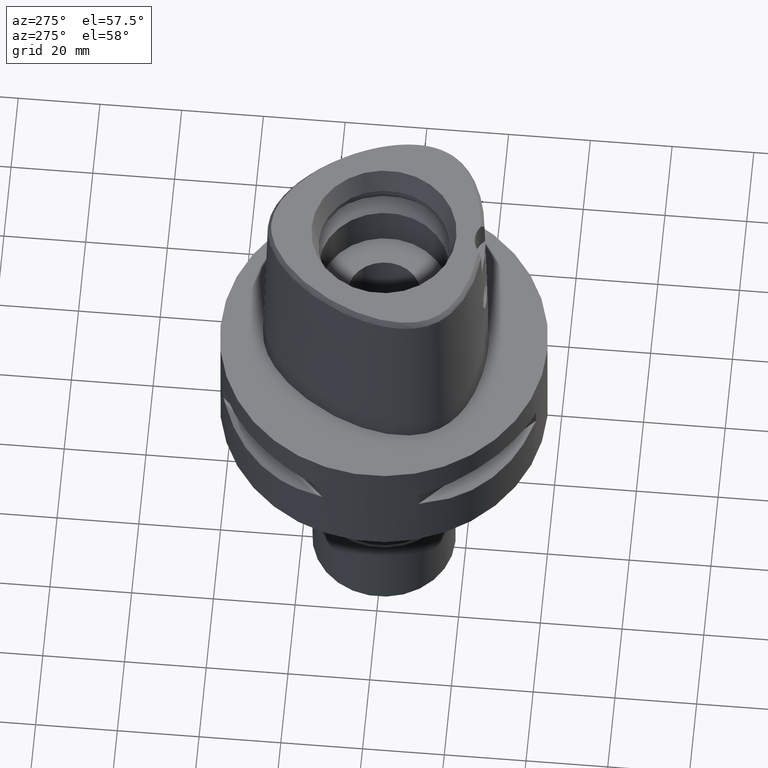
[diagram: clean part render]
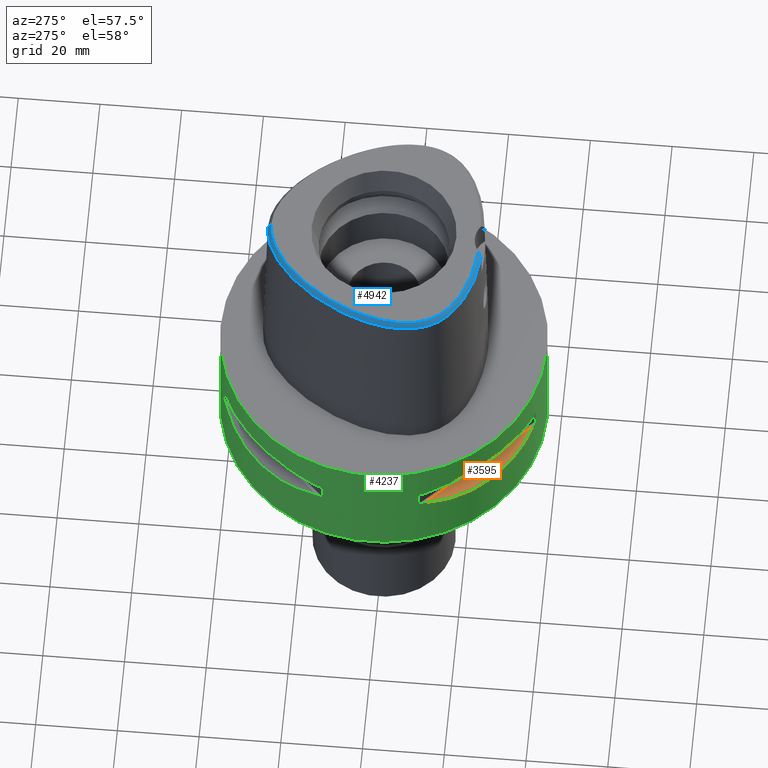
[diagram: same view with three faces highlighted in distinct colors, each labeled with its STEP entity id]
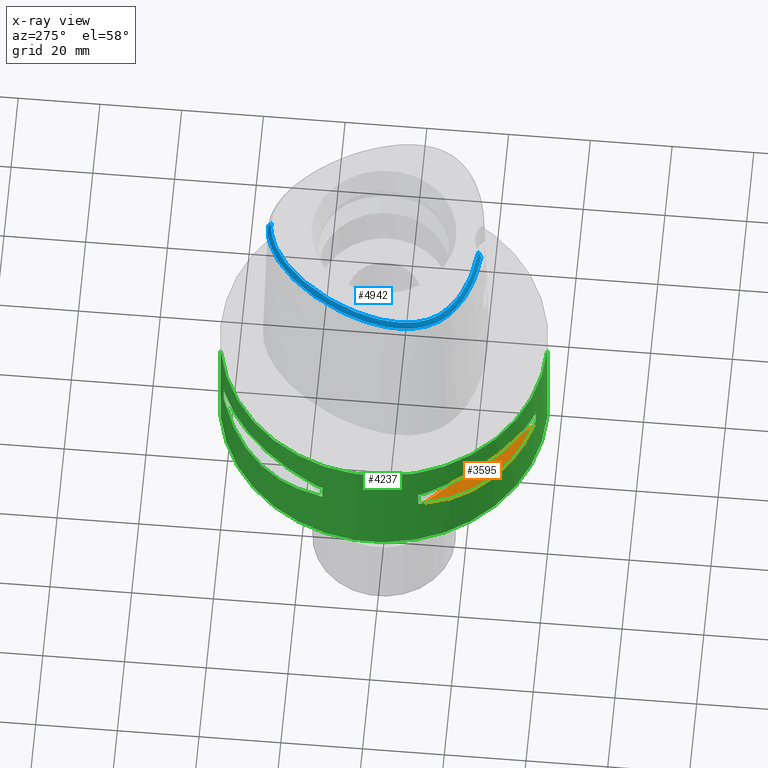
[diagram: x-ray of the same camera — body ghosted, the three highlighted faces saturated]
A machine part, auxiliary view with three faces highlighted in distinct colors.
The next image is the same camera in x-ray (body ghosted, the three faces saturated) — at least one of them is partly hidden behind the body in this view.
Their STEP definitions:

[orange] entity #3595 — the highlighted planar face has unit normal (0.3536, 0.3536, -0.866).
#39 = CARTESIAN_POINT ( 'NONE',  ( -37.74622163926999718, -13.23717311056000057, -14.05000000000000071 ) ) ;
#220 = PLANE ( 'NONE',  #4094 ) ;
#273 = FACE_OUTER_BOUND ( 'NONE', #5001, .T. ) ;
#278 = EDGE_CURVE ( 'NONE', #1574, #4448, #3249, .T. ) ;
#289 = DIRECTION ( 'NONE',  ( -0.7071067811865474617, 0.7071067811865474617, 0.0000000000000000000 ) ) ;
#355 = CARTESIAN_POINT ( 'NONE',  ( -33.91944728533057685, -21.20128033780564181, -15.73905907260659021 ) ) ;
#641 = CARTESIAN_POINT ( 'NONE',  ( -37.23659447743507656, -14.69039122921933327, -14.43521939501995455 ) ) ;
#739 = CARTESIAN_POINT ( 'NONE',  ( -21.56243030661520876, -33.69065616467307933, -15.79309434609242579 ) ) ;
#818 = CARTESIAN_POINT ( 'NONE',  ( -13.23717311056000057, -37.74622163926999718, -14.05000000000000071 ) ) ;
#1029 = LINE ( 'NONE', #2722, #2785 ) ;
#1053 = CARTESIAN_POINT ( 'NONE',  ( -35.11589783528859954, -19.18269457498280062, -15.40342377742433833 ) ) ;
#1126 = CARTESIAN_POINT ( 'NONE',  ( -30.34851826274553588, -26.21995747451482117, -16.33009976522011542 ) ) ;
#1153 = CARTESIAN_POINT ( 'NONE',  ( -21.52391145898850766, -33.71529052282418348, -15.78742602700005904 ) ) ;
#1206 = CARTESIAN_POINT ( 'NONE',  ( -21.50560509406301790, -33.72697758561011483, -15.78472370821750914 ) ) ;
#1353 = DIRECTION ( 'NONE',  ( 0.3535533905933054277, 0.3535533905933049836, -0.8660254037844130615 ) ) ;
#1512 = CARTESIAN_POINT ( 'NONE',  ( -33.82993376593362456, -21.34345216682506319, -15.76055673748866859 ) ) ;
#1574 = VERTEX_POINT ( 'NONE', #39 ) ;
#1590 = CARTESIAN_POINT ( 'NONE',  ( -33.79139713908509890, -21.40429668490517656, -15.76966389594782214 ) ) ;
#1963 = CARTESIAN_POINT ( 'NONE',  ( -34.09685321779313227, -20.91613153243677559, -15.69507322893291068 ) ) ;
#2328 = CARTESIAN_POINT ( 'NONE',  ( -22.02254759437525067, -33.39247868355583648, -15.85920599531240249 ) ) ;
#2595 = DIRECTION ( 'NONE',  ( 0.0000000000000000000, -0.9258200997725358761, -0.3779644730092654448 ) ) ;
#2714 = CARTESIAN_POINT ( 'NONE',  ( -25.62819065482928238, -30.77249687757597130, -16.26160051742800405 ) ) ;
#2722 = CARTESIAN_POINT ( 'NONE',  ( -13.23717311056000057, -37.74622163926999718, -14.05000000000000071 ) ) ;
#2785 = VECTOR ( 'NONE', #289, 1000.000000000000114 ) ;
#2793 = CARTESIAN_POINT ( 'NONE',  ( -16.14402792106406537, -36.72682052671675024, -14.82054974551737736 ) ) ;
#3122 = CARTESIAN_POINT ( 'NONE',  ( -27.25214773981850058, -29.31642813393388280, -16.33014064577179170 ) ) ;
#3166 = CARTESIAN_POINT ( 'NONE',  ( -33.76566745674963954, -21.44484052678404495, -15.77571175125607539 ) ) ;
#3249 = B_SPLINE_CURVE_WITH_KNOTS ( 'NONE', 3,
 ( #4554, #641, #3397, #1053, #4195, #1963, #355, #1512, #1590, #3166, #4347, #4725, #1126, #3122, #2714, #5068, #5088, #2328, #4680, #4270, #739, #1153, #1206, #3531, #2793, #818 ),
 .UNSPECIFIED., .F., .F.,
 ( 4, 1, 1, 1, 1, 1, 1, 2, 2, 2, 1, 1, 1, 1, 1, 1, 2, 2, 4 ),
 ( 0.0000000000000000000, 0.1250000000000138500, 0.1875000000000207612, 0.2187500000000239808, 0.2343750000000256184, 0.2421875000000264233, 0.2460937500000268119, 0.2480468750000267841, 0.2500000000000267564, 0.5000000000000112133, 0.6250000000000033307, 0.6874999999999994449, 0.7187499999999975575, 0.7343749999999967804, 0.7421874999999964473, 0.7460937499999964473, 0.7480468749999964473, 0.7499999999999963363, 1.000000000000000000 ),
 .UNSPECIFIED. ) ;
#3397 = CARTESIAN_POINT ( 'NONE',  ( -36.35358138586987309, -16.81132763106876027, -14.94059947016890533 ) ) ;
#3500 = ORIENTED_EDGE ( 'NONE', *, *, #278, .T. ) ;
#3531 = CARTESIAN_POINT ( 'NONE',  ( -18.89342208867770978, -35.39137327287981094, -15.39779115587344371 ) ) ;
#3595 = ADVANCED_FACE ( 'NONE', ( #273 ), #220, .F. ) ;
#3822 = CARTESIAN_POINT ( 'NONE',  ( -43.16936690458000214, -7.814027845251999338, -14.05000000000000071 ) ) ;
#4094 = AXIS2_PLACEMENT_3D ( 'NONE', #3822, #1353, #2595 ) ;
#4195 = CARTESIAN_POINT ( 'NONE',  ( -34.44518065739252677, -20.34261333237893510, -15.60313948594748901 ) ) ;
#4270 = CARTESIAN_POINT ( 'NONE',  ( -21.62017158009452800, -33.65365962423051371, -15.80156334789082173 ) ) ;
#4347 = CARTESIAN_POINT ( 'NONE',  ( -33.75216276490101563, -21.46607685731485660, -15.77886817953056919 ) ) ;
#4448 = VERTEX_POINT ( 'NONE', #5083 ) ;
#4550 = ORIENTED_EDGE ( 'NONE', *, *, #4979, .T. ) ;
#4554 = CARTESIAN_POINT ( 'NONE',  ( -37.74622163926999718, -13.23717311056000057, -14.05000000000000071 ) ) ;
#4680 = CARTESIAN_POINT ( 'NONE',  ( -21.75464223248804174, -33.56701934068692594, -15.82109001420605310 ) ) ;
#4725 = CARTESIAN_POINT ( 'NONE',  ( -32.16767032364430889, -23.95303639244579585, -16.14729882780465786 ) ) ;
#4979 = EDGE_CURVE ( 'NONE', #4448, #1574, #1029, .T. ) ;
#5001 = EDGE_LOOP ( 'NONE', ( #4550, #3500 ) ) ;
#5068 = CARTESIAN_POINT ( 'NONE',  ( -23.60097336450518313, -32.30995221954039209, -16.06165603927589558 ) ) ;
#5083 = CARTESIAN_POINT ( 'NONE',  ( -13.23717311056000057, -37.74622163926999718, -14.05000000000000071 ) ) ;
#5088 = CARTESIAN_POINT ( 'NONE',  ( -22.55421454655065006, -33.03835700911811557, -15.93168855142875984 ) ) ;

[blue] entity #4942 — the highlighted face is a freeform B-spline surface patch.
#11 = CARTESIAN_POINT ( 'NONE',  ( -23.85973052665999816, -14.32017719816999879, 47.56778478066999583 ) ) ;
#36 = CARTESIAN_POINT ( 'NONE',  ( -25.88687053490999901, -8.349327234848999524, 47.56778488044000142 ) ) ;
#60 = B_SPLINE_CURVE_WITH_KNOTS ( 'NONE', 3,
 ( #2565, #1733, #587, #3323, #4124, #3736, #4926, #2924, #946, #564, #207, #3423, #4241, #334, #1491, #3455, #663, #2999, #4531, #3071, #4630, #3349, #3807, #281, #4969, #3860, #3376, #4996, #1001, #1887, #4920, #3052, #1394, #1099, #2607, #2979, #3785, #2582, #5022, #712, #1856, #2634, #1437, #257, #2253, #2307, #4142, #606, #1470, #4171, #3022, #2682, #2232, #4607, #1077, #2199, #1023, #2661, #3830, #3757, #4218, #4583, #686, #236, #1810, #1835, #4945 ),
 .UNSPECIFIED., .F., .F.,
 ( 4, 1, 1, 1, 1, 1, 1, 1, 1, 1, 1, 1, 1, 1, 1, 1, 1, 1, 1, 1, 1, 1, 1, 1, 1, 1, 1, 1, 1, 1, 1, 1, 1, 1, 1, 1, 1, 1, 1, 1, 1, 1, 1, 1, 1, 1, 1, 1, 1, 1, 1, 1, 1, 1, 1, 1, 1, 1, 1, 1, 1, 1, 1, 1, 4 ),
 ( 0.0000000000000000000, 0.001025211071800091744, 0.01688195375320000746, 0.03273869643469995427, 0.04859543911610009204, 0.06445218179750000775, 0.08030892447889992347, 0.09616566716030006123, 0.1120224098416999770, 0.1278791525231999238, 0.1437358952045000304, 0.1595926378859000572, 0.1754493805672999729, 0.1913061232486999996, 0.2071628659301000264, 0.2230196086114999421, 0.2388763512929999999, 0.2547330939744000267, 0.2705898366558000534, 0.2864465793371999691, 0.3023033220184999648, 0.3181600646999001025, 0.3340168073814000493, 0.3498735500627999651, 0.3657302927441999918, 0.3815870354256000185, 0.3974437781070000453, 0.4133005207884000720, 0.4291572634697999877, 0.4450140061513000456, 0.4608707488326000412, 0.4767274915139999569, 0.4925842341953999837, 0.5084409768768000104, 0.5242977195582000371, 0.5401544622396999840, 0.5560112049211000107, 0.5718679476025000374, 0.5877246902838999532, 0.6035814329652000598, 0.6194381756466000866, 0.6352949183280000023, 0.6511516610095000601, 0.6670084036908999758, 0.6828651463723000026, 0.6987218890537000293, 0.7145786317350999450, 0.7304353744164999718, 0.7462921170980000296, 0.7621488597793000253, 0.7780056024607000520, 0.7938623451421000787, 0.8097190878234999944, 0.8255758305049000212, 0.8414325731862999369, 0.8572893158677999947, 0.8731460585492000215, 0.8890028012306000482, 0.9048595439119599959, 0.9207162865933600226, 0.9365730292747700414, 0.9524297719561699571, 0.9682865146375799759, 0.9841432573189800026, 1.000000000000000000 ),
 .UNSPECIFIED. ) ;
#63 = CARTESIAN_POINT ( 'NONE',  ( -25.65065256399000049, -1.428989205168999854, 47.56778487953999957 ) ) ;
#79 = CARTESIAN_POINT ( 'NONE',  ( -11.01404125719000149, 22.95153887121999858, 48.18266515636000236 ) ) ;
#89 = CARTESIAN_POINT ( 'NONE',  ( -24.82198718308000451, -14.04534444747999800, 46.33802447808999858 ) ) ;
#98 = CARTESIAN_POINT ( 'NONE',  ( -1.472714967856999957, 28.09305359513000155, 46.95290407551999579 ) ) ;
#108 = CARTESIAN_POINT ( 'NONE',  ( -25.40935905019999907, -9.206105145731001471, 48.18266515654000415 ) ) ;
#117 = CARTESIAN_POINT ( 'NONE',  ( -2.179830939596000050, 27.64510197739000219, 47.56778471461999658 ) ) ;
#130 = CARTESIAN_POINT ( 'NONE',  ( -13.84700289823999952, -22.31116318605999993, 46.33802461073999979 ) ) ;
#138 = LINE ( 'NONE', #2857, #2443 ) ;
#146 = CARTESIAN_POINT ( 'NONE',  ( 0.01276034083870000203, 28.52185808899999842, 46.33802458352000286 ) ) ;
#160 = CARTESIAN_POINT ( 'NONE',  ( -17.02524778489999946, -19.81453478907999965, 48.18266513414999963 ) ) ;
#170 = CARTESIAN_POINT ( 'NONE',  ( -8.971542782294998020, 24.44180511132999811, 48.18266513112000382 ) ) ;
#188 = CARTESIAN_POINT ( 'NONE',  ( -22.76752744615999902, -16.33653382689999845, 46.95290462015999822 ) ) ;
#191 = CARTESIAN_POINT ( 'NONE',  ( -24.12841474588403656, 6.387994236496080447, 46.52070903171014038 ) ) ;
#197 = CARTESIAN_POINT ( 'NONE',  ( -21.56110687811000304, 11.70143693588999945, 46.33802436762000099 ) ) ;
#207 = CARTESIAN_POINT ( 'NONE',  ( -15.99341638177136815, -20.43562447748373145, 47.99999999999867129 ) ) ;
#209 = CARTESIAN_POINT ( 'NONE',  ( -17.50255946825000208, -20.73158011990000205, 46.33802428105000359 ) ) ;
#214 = CARTESIAN_POINT ( 'NONE',  ( -5.810185802762202201, 27.27372406630546919, 46.52070903171014038 ) ) ;
#221 = CARTESIAN_POINT ( 'NONE',  ( -23.72550409398000326, 6.416067708822000171, 46.95290528001999775 ) ) ;
#228 = EDGE_CURVE ( 'NONE', #4923, #3269, #60, .T. ) ;
#236 = CARTESIAN_POINT ( 'NONE',  ( -1.406513445700604770, 27.50987728443828928, 48.00000000000335376 ) ) ;
#242 = CARTESIAN_POINT ( 'NONE',  ( -21.95624140612999753, -16.69496618828999956, 47.56778482837000155 ) ) ;
#249 = CARTESIAN_POINT ( 'NONE',  ( -25.37817508463999872, -0.01655740999244000033, 47.56778499063999988 ) ) ;
#257 = CARTESIAN_POINT ( 'NONE',  ( -20.74831938583943369, 11.24670202904831484, 48.00000000000097344 ) ) ;
#264 = CARTESIAN_POINT ( 'NONE',  ( -3.479430564687999716, -24.04233839092999858, 46.95290559103000305 ) ) ;
#281 = CARTESIAN_POINT ( 'NONE',  ( -24.32740975878668621, -12.97324844465089200, 48.00000000000218847 ) ) ;
#334 = CARTESIAN_POINT ( 'NONE',  ( -18.95547945645419929, -18.80500687501776724, 48.00000000000500933 ) ) ;
#340 = CARTESIAN_POINT ( 'NONE',  ( -2.914775485834999902, -24.07992823446999964, 46.95290545952000372 ) ) ;
#344 = CARTESIAN_POINT ( 'NONE',  ( -24.04466464681000204, 6.545949786760999700, 46.33802541529000507 ) ) ;
#365 = CARTESIAN_POINT ( 'NONE',  ( -24.68803046729999906, 4.862342221965000988, 46.33802395878999647 ) ) ;
#396 = CARTESIAN_POINT ( 'NONE',  ( -25.69291917512000012, -11.02862668364000065, 46.95290453218000692 ) ) ;
#422 = CARTESIAN_POINT ( 'NONE',  ( -26.31370341579999916, -4.000911112409999859, 46.95290479654999416 ) ) ;
#426 = CARTESIAN_POINT ( 'NONE',  ( -26.68853359098950051, -5.367220537273073688, 46.52070903171014038 ) ) ;
#448 = CARTESIAN_POINT ( 'NONE',  ( -25.97007891279999825, -4.026889312511999997, 47.56778494518999878 ) ) ;
#452 = CARTESIAN_POINT ( 'NONE',  ( -25.28208905153830699, -12.92658008282343118, 46.52070903171014038 ) ) ;
#456 = CARTESIAN_POINT ( 'NONE',  ( -10.18061000867999866, 24.02289470388999959, 47.56778479745999277 ) ) ;
#471 = CARTESIAN_POINT ( 'NONE',  ( -24.85643246067999712, -13.22744614075000058, 46.95290423917000311 ) ) ;
#480 = CARTESIAN_POINT ( 'NONE',  ( -25.97777222569306943, -11.09135444108310153, 46.52070903171014038 ) ) ;
#484 = CARTESIAN_POINT ( 'NONE',  ( -2.949722842448999849, 27.49254859052999933, 47.56778493592000245 ) ) ;
#493 = CARTESIAN_POINT ( 'NONE',  ( -25.31094493443000104, -1.486819852128999919, 48.18266512158000126 ) ) ;
#502 = CARTESIAN_POINT ( 'NONE',  ( -9.161296193203000371, 24.72946405122999991, 47.56778485694999858 ) ) ;
#512 = CARTESIAN_POINT ( 'NONE',  ( -7.429846845554999746, -23.23478847041999984, 47.56778483141999914 ) ) ;
#521 = CARTESIAN_POINT ( 'NONE',  ( 0.01152200493824999915, 27.48784005795999974, 48.18266510091000043 ) ) ;
#535 = CARTESIAN_POINT ( 'NONE',  ( -20.66327114094000450, -17.86085831777000266, 47.56778480338999771 ) ) ;
#550 = CARTESIAN_POINT ( 'NONE',  ( -2.237698891734000384, 27.98486035724000232, 46.95290423794999413 ) ) ;
#564 = CARTESIAN_POINT ( 'NONE',  ( -14.81597509389792222, -20.94671102737491353, 48.00000000000103029 ) ) ;
#566 = CARTESIAN_POINT ( 'NONE',  ( -12.12238857580999962, -21.79059702640999774, 48.18266509429999900 ) ) ;
#574 = CARTESIAN_POINT ( 'NONE',  ( -14.77885556120000032, 20.41115651169999978, 46.95290682907000246 ) ) ;
#587 = CARTESIAN_POINT ( 'NONE',  ( -4.354443962177992233, -23.38344539136106093, 48.00000000000195399 ) ) ;
#589 = CARTESIAN_POINT ( 'NONE',  ( -21.09716878640000104, -18.39641221279000050, 46.33802410263999860 ) ) ;
#599 = CARTESIAN_POINT ( 'NONE',  ( -18.16123325638999830, 16.35724740178000047, 46.95290486648000439 ) ) ;
#606 = CARTESIAN_POINT ( 'NONE',  ( -16.58720414441402013, 17.44590650687568356, 47.99999999999626255 ) ) ;
#613 = CARTESIAN_POINT ( 'NONE',  ( -23.54859562410999985, -15.94539480649999774, 46.33802479321000334 ) ) ;
#628 = CARTESIAN_POINT ( 'NONE',  ( -25.04142759522000006, -0.08965617924034999242, 48.18266507462999471 ) ) ;
#663 = CARTESIAN_POINT ( 'NONE',  ( -21.17991838302021179, -17.09989881138103485, 48.00000000000431299 ) ) ;
#669 = CARTESIAN_POINT ( 'NONE',  ( -4.344789003882000067, -23.28155664714999773, 48.18266494016999957 ) ) ;
#686 = CARTESIAN_POINT ( 'NONE',  ( -2.139154069216872234, 27.40627708267105689, 48.00000000000830624 ) ) ;
#693 = CARTESIAN_POINT ( 'NONE',  ( -2.936096016526999808, -24.42374299959999817, 46.33802570019000200 ) ) ;
#712 = CARTESIAN_POINT ( 'NONE',  ( -23.81131852265766824, 4.547972304024098023, 47.99999999999847233 ) ) ;
#726 = CARTESIAN_POINT ( 'NONE',  ( -20.95969375434999904, 11.36496086630000057, 47.56778487229999541 ) ) ;
#748 = CARTESIAN_POINT ( 'NONE',  ( -18.43906725993000251, 16.56106087801000015, 46.33802475889000050 ) ) ;
#773 = CARTESIAN_POINT ( 'NONE',  ( -25.03081798983999917, -10.83694459806999966, 48.18266513995000366 ) ) ;
#806 = CARTESIAN_POINT ( 'NONE',  ( -23.73970409490999955, -15.11918144520000062, 46.95290446708000331 ) ) ;
#830 = CARTESIAN_POINT ( 'NONE',  ( -25.57260163374000328, -10.12587786883999996, 47.56778481177000373 ) ) ;
#835 = CARTESIAN_POINT ( 'NONE',  ( -4.472216406693000579, -24.20008985674000357, 46.52070903171000538 ) ) ;
#851 = CARTESIAN_POINT ( 'NONE',  ( -25.63935620067000087, -7.345899301063999687, 48.18266504212999735 ) ) ;
#856 = CARTESIAN_POINT ( 'NONE',  ( -7.937300651754481962, -23.78071178104402250, 46.52070903171014038 ) ) ;
#861 = CARTESIAN_POINT ( 'NONE',  ( 0.4905752663463999186, 27.47371682015999639, 48.18266514668000156 ) ) ;
#878 = CARTESIAN_POINT ( 'NONE',  ( -24.79391886424999925, -11.57724751331999968, 48.18266510802000369 ) ) ;
#887 = CARTESIAN_POINT ( 'NONE',  ( -14.87405714085107533, -21.87944447072784726, 46.52070903171014038 ) ) ;
#891 = CARTESIAN_POINT ( 'NONE',  ( -7.063109472405000311, 25.57166699079000338, 48.18266505774000308 ) ) ;
#899 = CARTESIAN_POINT ( 'NONE',  ( -18.35359548329999768, -19.86750805532000186, 46.95290473597999892 ) ) ;
#911 = CARTESIAN_POINT ( 'NONE',  ( -0.7450737649651000272, 28.50035926701999855, 46.33802399995999366 ) ) ;
#922 = CARTESIAN_POINT ( 'NONE',  ( -22.51051412314999922, -16.10691164342999926, 47.56778487238999276 ) ) ;
#932 = CARTESIAN_POINT ( 'NONE',  ( -6.305581381070000546, 26.33076910389999981, 47.56778496087000008 ) ) ;
#946 = CARTESIAN_POINT ( 'NONE',  ( -13.53666233734493751, -21.43297585321936793, 47.99999999999280220 ) ) ;
#948 = CARTESIAN_POINT ( 'NONE',  ( -19.71118593986000178, -18.15861235634000082, 48.18266509064999781 ) ) ;
#964 = B_SPLINE_CURVE_WITH_KNOTS ( 'NONE', 3,
 ( #835, #3283, #856, #4846, #887, #2398, #2444, #3978, #4007, #2472, #452, #480, #3954, #426, #2007, #2511, #191, #1742, #2930, #2963, #2160, #214, #3741, #2570, #4896 ),
 .UNSPECIFIED., .F., .F.,
 ( 4, 1, 1, 1, 1, 1, 1, 1, 1, 1, 1, 1, 1, 1, 1, 1, 1, 1, 1, 1, 1, 1, 4 ),
 ( 0.0000000000000000000, 0.03735859270279395100, 0.08111502030725530055, 0.1248714479116117132, 0.1686278755159681397, 0.2123843031204294962, 0.2561407307247859366, 0.2780189445269641846, 0.2998971583291423215, 0.3217753721314255411, 0.3436535859336037890, 0.3874100135379602294, 0.4311664411423166143, 0.4749228687467779708, 0.5186792963511344112, 0.5624357239554907961, 0.6499485791643085930, 0.7374614343731265009, 0.8249742895818392707, 0.8687307171863006827, 0.9124871447906466315, 0.9562435723950345468, 1.000000000000000000 ),
 .UNSPECIFIED. ) ;
#966 = CARTESIAN_POINT ( 'NONE',  ( -17.60556524931000055, 15.94962044931000023, 48.18266508164000328 ) ) ;
#985 = CARTESIAN_POINT ( 'NONE',  ( -19.91398473602999886, -18.43725177230999890, 47.56778495273000118 ) ) ;
#993 = CARTESIAN_POINT ( 'NONE',  ( -24.57726166407000079, 3.019698790101999819, 47.56778484332999568 ) ) ;
#994 = CARTESIAN_POINT ( 'NONE',  ( -3.652529789304999941, -23.43985019791999846, 48.00000000000000000 ) ) ;
#1001 = CARTESIAN_POINT ( 'NONE',  ( -25.51017841222034832, -9.223923978199422891, 48.00000000000112266 ) ) ;
#1007 = CARTESIAN_POINT ( 'NONE',  ( -9.194940598536000209, -23.25187453793999737, 46.95290456088000752 ) ) ;
#1014 = CARTESIAN_POINT ( 'NONE',  ( -13.64902965123000023, 21.54753065274999813, 46.95290715538000370 ) ) ;
#1023 = CARTESIAN_POINT ( 'NONE',  ( -7.110865803014315922, 25.66222324296372292, 48.00000000000211031 ) ) ;
#1077 = CARTESIAN_POINT ( 'NONE',  ( -9.027913645275688737, 24.52726119145383876, 47.99999999999586464 ) ) ;
#1099 = CARTESIAN_POINT ( 'NONE',  ( -25.72853642077066638, -4.045150056829852403, 47.99999999999759126 ) ) ;
#1108 = CARTESIAN_POINT ( 'NONE',  ( -20.65898719245999970, 11.19672283151000158, 48.18266512463999618 ) ) ;
#1140 = CARTESIAN_POINT ( 'NONE',  ( -12.30733032116000025, 22.31442400412999660, 47.56778546402999552 ) ) ;
#1162 = CARTESIAN_POINT ( 'NONE',  ( -26.03268172123000213, -6.325691619812999988, 47.56778500248000086 ) ) ;
#1186 = CARTESIAN_POINT ( 'NONE',  ( -26.71924807022000081, -5.193662873151000170, 46.33802416952000414 ) ) ;
#1224 = CARTESIAN_POINT ( 'NONE',  ( -26.03028494282999716, -5.212546306813999664, 47.56778482077999826 ) ) ;
#1234 = EDGE_CURVE ( 'NONE', #3121, #3269, #138, .T. ) ;
#1245 = CARTESIAN_POINT ( 'NONE',  ( -24.23512208412000035, -12.92890381786000020, 48.18266519107000079 ) ) ;
#1254 = CARTESIAN_POINT ( 'NONE',  ( -6.595970259450000484, 26.95585951516999756, 46.33802470820000252 ) ) ;
#1267 = CARTESIAN_POINT ( 'NONE',  ( -26.57093268028999944, -8.433787045534000271, 46.33802439891999825 ) ) ;
#1275 = CARTESIAN_POINT ( 'NONE',  ( -0.7059263904377000021, 27.81215297130000152, 47.56778477668999727 ) ) ;
#1286 = EDGE_CURVE ( 'NONE', #2408, #3121, #964, .T. ) ;
#1290 = CARTESIAN_POINT ( 'NONE',  ( -10.72386372569000201, -22.54056967618000229, 47.56778484720999955 ) ) ;
#1303 = CARTESIAN_POINT ( 'NONE',  ( -9.540803015018999744, 25.30478193104999818, 46.33802430861999966 ) ) ;
#1315 = CARTESIAN_POINT ( 'NONE',  ( -18.89950982147000147, -18.71928281606000155, 48.18266503638000131 ) ) ;
#1328 = CARTESIAN_POINT ( 'NONE',  ( -4.568698529743000059, 27.03114456259000065, 47.56778495505999871 ) ) ;
#1342 = CARTESIAN_POINT ( 'NONE',  ( -16.38356891815000083, -21.28141152413000015, 46.33802471314000115 ) ) ;
#1354 = CARTESIAN_POINT ( 'NONE',  ( -2.295566843871999829, 28.32461873708000155, 46.33802376129000322 ) ) ;
#1370 = CARTESIAN_POINT ( 'NONE',  ( -22.20037857580999940, -16.93822699294999978, 46.95290451354000538 ) ) ;
#1385 = CARTESIAN_POINT ( 'NONE',  ( -18.67523644961999807, 14.42704743389999855, 48.18266504619000301 ) ) ;
#1394 = CARTESIAN_POINT ( 'NONE',  ( -25.78814000082118696, -5.219183132163783156, 47.99999999999840838 ) ) ;
#1401 = CARTESIAN_POINT ( 'NONE',  ( -15.03662591335999998, -21.49047301072000238, 46.95290455765000814 ) ) ;
#1407 = CARTESIAN_POINT ( 'NONE',  ( -20.28449799606999804, 13.19733621296999893, 46.95290458004000556 ) ) ;
#1431 = CARTESIAN_POINT ( 'NONE',  ( -26.05167006346999869, 0.1296401285033999817, 46.33802482266000311 ) ) ;
#1437 = CARTESIAN_POINT ( 'NONE',  ( -21.64189922317223136, 9.570126786845483124, 48.00000000000148503 ) ) ;
#1470 = CARTESIAN_POINT ( 'NONE',  ( -15.47246034442059326, 18.77924032487096540, 48.00000000000521538 ) ) ;
#1491 = CARTESIAN_POINT ( 'NONE',  ( -19.77143225162270213, -18.24138896764571882, 48.00000000000250111 ) ) ;
#1497 = CARTESIAN_POINT ( 'NONE',  ( -4.442289441445000264, -24.31047845488999570, 46.33802604601000041 ) ) ;
#1518 = CARTESIAN_POINT ( 'NONE',  ( -3.153775949991000083, -23.71997061882000324, 47.56778524766999539 ) ) ;
#1522 = CARTESIAN_POINT ( 'NONE',  ( -20.57813137048000129, 13.37763646628999936, 46.33802430425000551 ) ) ;
#1556 = CARTESIAN_POINT ( 'NONE',  ( -15.02859249430999888, 20.64857806168999588, 46.33802787396999889 ) ) ;
#1579 = CARTESIAN_POINT ( 'NONE',  ( -24.15141753221000087, -14.50378127567999975, 46.95290439797999937 ) ) ;
#1601 = CARTESIAN_POINT ( 'NONE',  ( -25.54483946222000057, -8.307097329507000083, 48.18266512120000300 ) ) ;
#1636 = CARTESIAN_POINT ( 'NONE',  ( -26.32682634421000145, -7.395322272097999416, 46.95290509293000270 ) ) ;
#1646 = CARTESIAN_POINT ( 'NONE',  ( -1.433839800011999843, 27.75059807110000065, 47.56778464757000080 ) ) ;
#1656 = CARTESIAN_POINT ( 'NONE',  ( -23.56804352111999989, -14.13657312066000138, 48.18266516335999938 ) ) ;
#1664 = CARTESIAN_POINT ( 'NONE',  ( -3.650848279312000066, 26.95784599095000189, 48.18266506116999892 ) ) ;
#1677 = CARTESIAN_POINT ( 'NONE',  ( -26.18770999812000255, -2.723430895143000185, 46.95290466223999459 ) ) ;
#1686 = CARTESIAN_POINT ( 'NONE',  ( -3.026156467585999543, 27.82861241964000243, 46.95290477407999674 ) ) ;
#1706 = CARTESIAN_POINT ( 'NONE',  ( -9.123916089278001351, -22.91469276946999756, 47.56778484790999784 ) ) ;
#1718 = CARTESIAN_POINT ( 'NONE',  ( -3.934366943287999518, 27.95213710075999813, 46.33802494503999725 ) ) ;
#1733 = CARTESIAN_POINT ( 'NONE',  ( -3.692743038414149748, -23.43666978756867891, 48.00000000000195399 ) ) ;
#1735 = CARTESIAN_POINT ( 'NONE',  ( -19.08791263427000118, -19.00784381591000383, 47.56778508115000648 ) ) ;
#1742 = CARTESIAN_POINT ( 'NONE',  ( -21.32746397970593577, 12.31340991043041555, 46.52070903171014038 ) ) ;
#1747 = CARTESIAN_POINT ( 'NONE',  ( -9.351049604110999169, 25.01712299113999904, 46.95290458278000045 ) ) ;
#1762 = CARTESIAN_POINT ( 'NONE',  ( -21.80362935516999912, -17.79180354193000113, 46.33802410770999813 ) ) ;
#1771 = CARTESIAN_POINT ( 'NONE',  ( -21.85791589348000130, 9.679678754393000517, 47.56778536742000085 ) ) ;
#1787 = CARTESIAN_POINT ( 'NONE',  ( -20.88021996367000099, -18.12863526527999980, 46.95290445301999682 ) ) ;
#1801 = CARTESIAN_POINT ( 'NONE',  ( -24.68900859883000010, 1.380244858479999781, 48.18266513241999860 ) ) ;
#1802 = CARTESIAN_POINT ( 'NONE',  ( -3.943566793699000428, -23.67294141938999985, 47.54325488045000014 ) ) ;
#1810 = CARTESIAN_POINT ( 'NONE',  ( -0.6921675427513541701, 27.57027402750018297, 48.00000000000292033 ) ) ;
#1816 = CARTESIAN_POINT ( 'NONE',  ( -4.409789295590999636, -23.96750451898000023, 46.95290567739999688 ) ) ;
#1824 = CARTESIAN_POINT ( 'NONE',  ( -25.71492257405000004, 0.05654135925547999764, 46.95290490665000505 ) ) ;
#1835 = CARTESIAN_POINT ( 'NONE',  ( -0.2321695341564686543, 27.58331912251347617, 48.00000000000166978 ) ) ;
#1841 = CARTESIAN_POINT ( 'NONE',  ( -5.693465882673999445, -23.83539947126999792, 46.95290545541000427 ) ) ;
#1856 = CARTESIAN_POINT ( 'NONE',  ( -23.18199738827294354, 6.194888181192778731, 47.99999999999968026 ) ) ;
#1887 = CARTESIAN_POINT ( 'NONE',  ( -25.64644810599343927, -8.319642749356557232, 48.00000000000108713 ) ) ;
#1920 = CARTESIAN_POINT ( 'NONE',  ( -23.71496049338000134, 4.513420401382000513, 48.18266516957000078 ) ) ;
#1943 = CARTESIAN_POINT ( 'NONE',  ( -19.24727826850000056, 14.81135047583000031, 46.95290506968999722 ) ) ;
#1975 = CARTESIAN_POINT ( 'NONE',  ( -23.91682606597999694, -13.54553054085000063, 48.18266511250000406 ) ) ;
#2002 = CARTESIAN_POINT ( 'NONE',  ( -25.98309127243999583, -7.370610786580999552, 47.56778506753000357 ) ) ;
#2007 = CARTESIAN_POINT ( 'NONE',  ( -26.38518529508803212, -1.941591755871553193, 46.52070903171014038 ) ) ;
#2025 = CARTESIAN_POINT ( 'NONE',  ( -25.90832721118000137, -10.20375350155999961, 46.95290447330999939 ) ) ;
#2036 = CARTESIAN_POINT ( 'NONE',  ( -10.38376834874000032, 24.30124160517999599, 46.95290443865000185 ) ) ;
#2055 = CARTESIAN_POINT ( 'NONE',  ( -24.21854643834999976, -13.71213517640000035, 47.56778490103000223 ) ) ;
#2067 = CARTESIAN_POINT ( 'NONE',  ( -11.66161663615000066, 23.75737247732000057, 46.33802407899000286 ) ) ;
#2077 = CARTESIAN_POINT ( 'NONE',  ( -25.68814626209999830, -6.318214857286999830, 48.18266506961999340 ) ) ;
#2086 = CARTESIAN_POINT ( 'NONE',  ( 0.01234756220521999841, 28.17718541198999915, 46.95290475598000057 ) ) ;
#2097 = CARTESIAN_POINT ( 'NONE',  ( -21.57287533419000169, -17.53581991195000001, 46.95290445621000686 ) ) ;
#2106 = CARTESIAN_POINT ( 'NONE',  ( 0.7675307115531999624, 27.80336218869999954, 47.56778464570000153 ) ) ;
#2128 = CARTESIAN_POINT ( 'NONE',  ( -18.17977242346000111, -19.56994315909999926, 47.56778492019000026 ) ) ;
#2140 = CARTESIAN_POINT ( 'NONE',  ( -3.839860721962999879, 27.62070673082000027, 46.95290498375000254 ) ) ;
#2155 = CARTESIAN_POINT ( 'NONE',  ( -12.22252747559000063, -22.12031440374000013, 47.56778494410000491 ) ) ;
#2160 = CARTESIAN_POINT ( 'NONE',  ( -8.696078067630917730, 25.79654218449509528, 46.52070903171014038 ) ) ;
#2165 = CARTESIAN_POINT ( 'NONE',  ( -22.67700258808000413, 7.978035317212998301, 47.56778549055999861 ) ) ;
#2182 = CARTESIAN_POINT ( 'NONE',  ( -20.31958232838000455, -18.99453060425999951, 46.33802467689999816 ) ) ;
#2190 = CARTESIAN_POINT ( 'NONE',  ( -21.26040031622999749, 11.53319890110000046, 46.95290461995999465 ) ) ;
#2199 = CARTESIAN_POINT ( 'NONE',  ( -8.052265342578699858, 25.13651235630733538, 47.99999999999873523 ) ) ;
#2206 = CARTESIAN_POINT ( 'NONE',  ( -13.61736982941000029, -21.66135817291999999, 47.56778493551999532 ) ) ;
#2223 = CARTESIAN_POINT ( 'NONE',  ( -22.47253753085999861, 9.991381594637001484, 46.33802627149999864 ) ) ;
#2232 = CARTESIAN_POINT ( 'NONE',  ( -11.07816725942615932, 23.03133635782277722, 47.99999999999937472 ) ) ;
#2253 = CARTESIAN_POINT ( 'NONE',  ( -19.78446217835354659, 12.89029827906723114, 47.99999999999754152 ) ) ;
#2259 = CARTESIAN_POINT ( 'NONE',  ( -3.504948394232999753, -24.38587383073999959, 46.33802590893000684 ) ) ;
#2283 = CARTESIAN_POINT ( 'NONE',  ( -3.130511406515000150, -23.37627638539999708, 48.18266496599999726 ) ) ;
#2307 = CARTESIAN_POINT ( 'NONE',  ( -18.76020591298037843, 14.48413071376436179, 48.00000000000532907 ) ) ;
#2317 = CARTESIAN_POINT ( 'NONE',  ( -12.76300886407999968, 22.83146409197999915, 46.33802664294999829 ) ) ;
#2339 = CARTESIAN_POINT ( 'NONE',  ( -19.69723124724000130, 12.83673570632000072, 48.18266513160000386 ) ) ;
#2364 = CARTESIAN_POINT ( 'NONE',  ( -26.42748171945000379, -9.386048332361999869, 46.33802407737000095 ) ) ;
#2394 = CARTESIAN_POINT ( 'NONE',  ( -24.02057361933000124, -15.31893081250000144, 46.33802412496999779 ) ) ;
#2398 = CARTESIAN_POINT ( 'NONE',  ( -17.99241701171315455, -20.42933791836405177, 46.52070903171014038 ) ) ;
#2408 = VERTEX_POINT ( 'NONE', #3373 ) ;
#2417 = CARTESIAN_POINT ( 'NONE',  ( -25.99036019355999727, -1.371158558209000011, 46.95290463749999788 ) ) ;
#2425 = CARTESIAN_POINT ( 'NONE',  ( 0.7469761629653000057, 27.45951969290999983, 48.18266522040000410 ) ) ;
#2438 = CARTESIAN_POINT ( 'NONE',  ( -25.84569220934000100, -2.765537637315000019, 47.56778488975000130 ) ) ;
#2443 = VECTOR ( 'NONE', #4772, 1000.000000000000114 ) ;
#2444 = CARTESIAN_POINT ( 'NONE',  ( -20.71467387648498359, -18.66855143330892730, 46.52070903171014038 ) ) ;
#2449 = CARTESIAN_POINT ( 'NONE',  ( -11.22989971684000032, 23.22015007324999658, 47.56778479723999453 ) ) ;
#2468 = CARTESIAN_POINT ( 'NONE',  ( -24.52810407557999994, -12.27351773310000027, 48.18266508067999609 ) ) ;
#2472 = CARTESIAN_POINT ( 'NONE',  ( -24.62887906781006109, -14.21948995895935042, 46.52070903171014038 ) ) ;
#2476 = CARTESIAN_POINT ( 'NONE',  ( -5.550232134489999858, 27.03312331560999837, 46.95290452270000259 ) ) ;
#2484 = CARTESIAN_POINT ( 'NONE',  ( -13.73218636382000035, -21.98626067949000173, 46.95290477313000110 ) ) ;
#2495 = CARTESIAN_POINT ( 'NONE',  ( -2.873289217311999710, 27.15648476143000067, 48.18266509776000106 ) ) ;
#2507 = CARTESIAN_POINT ( 'NONE',  ( -18.52741854313999781, -20.16507295154000090, 46.33802455176999757 ) ) ;
#2511 = CARTESIAN_POINT ( 'NONE',  ( -25.64632274977576998, 1.601536978523879995, 46.52070903171014038 ) ) ;
#2516 = CARTESIAN_POINT ( 'NONE',  ( -7.384620485237000764, 26.18132087297000155, 46.95290500346000329 ) ) ;
#2518 = B_SPLINE_CURVE_WITH_KNOTS ( 'NONE', 3,
 ( #994, #4442, #1802, #3263, #2575, #4135 ),
 .UNSPECIFIED., .F., .F.,
 ( 4, 1, 1, 4 ),
 ( 0.0000000000000000000, 0.3333333333333000081, 0.6666666666667000474, 1.000000000000000000 ),
 .UNSPECIFIED. ) ;
#2539 = CARTESIAN_POINT ( 'NONE',  ( -19.46471825987999793, -19.58496581560999772, 46.33802517070999727 ) ) ;
#2551 = CARTESIAN_POINT ( 'NONE',  ( -19.53329917794000181, 15.00350199679999896, 46.33802508142999699 ) ) ;
#2565 = CARTESIAN_POINT ( 'NONE',  ( -3.652529789304999941, -23.43985019791999846, 48.00000000000000000 ) ) ;
#2567 = CARTESIAN_POINT ( 'NONE',  ( -12.42280527513999999, -22.77974915840000136, 46.33802464370999985 ) ) ;
#2570 = CARTESIAN_POINT ( 'NONE',  ( -0.9629684636074511417, 28.41206041874009358, 46.52070903171014038 ) ) ;
#2574 = CARTESIAN_POINT ( 'NONE',  ( -25.23533392226999794, 3.224364721051000249, 46.33802425621000509 ) ) ;
#2575 = CARTESIAN_POINT ( 'NONE',  ( -4.388497435218999598, -24.10648541191000049, 46.70127220517999689 ) ) ;
#2582 = CARTESIAN_POINT ( 'NONE',  ( -24.78798701905637003, 1.406367702425262545, 47.99999999999734968 ) ) ;
#2588 = CARTESIAN_POINT ( 'NONE',  ( -7.373239052880999900, -22.89489211066999985, 48.18266514192000471 ) ) ;
#2596 = CARTESIAN_POINT ( 'NONE',  ( -17.88339925285000120, 16.15343392553999990, 47.56778497406000383 ) ) ;
#2607 = CARTESIAN_POINT ( 'NONE',  ( -25.60527911802508427, -2.795135548250072155, 48.00000000000463274 ) ) ;
#2634 = CARTESIAN_POINT ( 'NONE',  ( -22.45665628223688515, 7.877471279648480262, 48.00000000000295586 ) ) ;
#2661 = CARTESIAN_POINT ( 'NONE',  ( -6.203520479232357054, 26.11107304853077693, 48.00000000000262190 ) ) ;
#2668 = CARTESIAN_POINT ( 'NONE',  ( -5.608879736619999612, -23.15145959972999634, 48.18266497889999300 ) ) ;
#2682 = CARTESIAN_POINT ( 'NONE',  ( -12.14717624329017198, 22.13270362300660565, 48.00000000000080291 ) ) ;
#2690 = CARTESIAN_POINT ( 'NONE',  ( -3.428394905595999465, -23.35526751131000012, 48.18266495523999993 ) ) ;
#2695 = CARTESIAN_POINT ( 'NONE',  ( -21.55060507478000176, 9.523827334271999234, 48.18266491538999929 ) ) ;
#2726 = CARTESIAN_POINT ( 'NONE',  ( -14.52911862808999821, 20.17373496171000014, 47.56778578415999448 ) ) ;
#2747 = CARTESIAN_POINT ( 'NONE',  ( -26.67056141597999996, -7.420033757615000169, 46.33802511831999738 ) ) ;
#2773 = CARTESIAN_POINT ( 'NONE',  ( -23.17796504606999619, -14.71968271057999900, 48.18266515130999750 ) ) ;
#2805 = CARTESIAN_POINT ( 'NONE',  ( -25.74873327328999650, -9.266086207941000907, 47.56778479681999983 ) ) ;
#2832 = CARTESIAN_POINT ( 'NONE',  ( -26.52972778690000055, -2.681324152971999553, 46.33802443471999766 ) ) ;
#2840 = CARTESIAN_POINT ( 'NONE',  ( -7.223864978821000093, 25.87649393187999891, 47.56778503059999963 ) ) ;
#2851 = CARTESIAN_POINT ( 'NONE',  ( -26.37721718036999974, -6.333168382339000146, 46.95290493533000387 ) ) ;
#2857 = CARTESIAN_POINT ( 'NONE',  ( -1.216284564536000097E-11, 28.41206021534999593, 46.52071719450999154 ) ) ;
#2862 = CARTESIAN_POINT ( 'NONE',  ( 0.5043562832657999540, 27.81798305451000175, 47.56778482013999820 ) ) ;
#2879 = CARTESIAN_POINT ( 'NONE',  ( -18.00594936361999743, -19.27237826288000022, 48.18266510440000161 ) ) ;
#2890 = CARTESIAN_POINT ( 'NONE',  ( 0.5319183171043999625, 28.50651552321999915, 46.33802416707000305 ) ) ;
#2901 = CARTESIAN_POINT ( 'NONE',  ( -21.71210423643999832, -16.45170538362999935, 48.18266514321000216 ) ) ;
#2912 = CARTESIAN_POINT ( 'NONE',  ( -4.792746328806000378, 27.68298634957999838, 46.33802468585999890 ) ) ;
#2924 = CARTESIAN_POINT ( 'NONE',  ( -12.15213727003120781, -21.88854758767201503, 48.00000000000441958 ) ) ;
#2926 = CARTESIAN_POINT ( 'NONE',  ( -22.74073024627000095, -15.30008777735999992, 48.18266507786999853 ) ) ;
#2930 = CARTESIAN_POINT ( 'NONE',  ( -16.85032607015792649, 18.77963051275633433, 46.52070903171014038 ) ) ;
#2936 = CARTESIAN_POINT ( 'NONE',  ( -4.456674630210999410, 26.70522366909000311, 48.18266508967000306 ) ) ;
#2959 = CARTESIAN_POINT ( 'NONE',  ( -23.01001870554999940, -15.51519012040999890, 47.56778498298000102 ) ) ;
#2963 = CARTESIAN_POINT ( 'NONE',  ( -12.44957317646359662, 23.16260189109673107, 46.52070903171014038 ) ) ;
#2968 = CARTESIAN_POINT ( 'NONE',  ( -24.36367380932999893, 4.746034948437000800, 46.95290436239000087 ) ) ;
#2969 = CARTESIAN_POINT ( 'NONE',  ( -2.553408000961000117E-11, 27.58331912251000162, 48.00000000000000000 ) ) ;
#2979 = CARTESIAN_POINT ( 'NONE',  ( -25.41186334294681970, -1.469639852780015854, 48.00000000000082423 ) ) ;
#2985 = CARTESIAN_POINT ( 'NONE',  ( -10.63833613837999970, -22.20676796268999809, 48.18266513524000061 ) ) ;
#2991 = CARTESIAN_POINT ( 'NONE',  ( -13.88815292678000013, 21.79564426362999896, 46.33802839190000356 ) ) ;
#2999 = CARTESIAN_POINT ( 'NONE',  ( -21.78463111685380227, -16.52397191851041569, 48.00000000000411404 ) ) ;
#3014 = CARTESIAN_POINT ( 'NONE',  ( -13.17078310011999953, 21.05130343098000267, 48.18266468232999955 ) ) ;
#3022 = CARTESIAN_POINT ( 'NONE',  ( -13.24182048140907675, 21.12501160990382587, 47.99999999999571543 ) ) ;
#3052 = CARTESIAN_POINT ( 'NONE',  ( -25.79049889473897039, -6.320436011330426318, 47.99999999999885603 ) ) ;
#3062 = EDGE_LOOP ( 'NONE', ( #3537, #4533, #3988, #4248 ) ) ;
#3071 = CARTESIAN_POINT ( 'NONE',  ( -22.82072892860048086, -15.36398915678117660, 48.00000000000560618 ) ) ;
#3089 = FACE_OUTER_BOUND ( 'NONE', #3062, .T. ) ;
#3099 = CARTESIAN_POINT ( 'NONE',  ( -3.177040493467000015, -24.06366485223000140, 46.95290552935000505 ) ) ;
#3105 = CARTESIAN_POINT ( 'NONE',  ( -24.03931715135999880, 4.629727674910000701, 47.56778476597999372 ) ) ;
#3121 = VERTEX_POINT ( 'NONE', #3697 ) ;
#3133 = CARTESIAN_POINT ( 'NONE',  ( -13.40990637566999943, 21.29941704185999996, 47.56778591885999674 ) ) ;
#3154 = CARTESIAN_POINT ( 'NONE',  ( -26.33006782311999672, -1.313327911248000079, 46.33802439545000595 ) ) ;
#3178 = CARTESIAN_POINT ( 'NONE',  ( -25.11923824650000014, -11.69104809036999804, 47.56778491161999511 ) ) ;
#3212 = CARTESIAN_POINT ( 'NONE',  ( -25.23687605629999808, -10.04800223612000032, 48.18266515023000096 ) ) ;
#3221 = CARTESIAN_POINT ( 'NONE',  ( -6.450775820260000515, 26.64331430953999913, 46.95290483453999997 ) ) ;
#3232 = CARTESIAN_POINT ( 'NONE',  ( -26.22890160760000100, -8.391557140191999054, 46.95290463967999983 ) ) ;
#3240 = CARTESIAN_POINT ( 'NONE',  ( -5.292364592632999631, 26.39391735008999973, 48.18266514161000202 ) ) ;
#3251 = CARTESIAN_POINT ( 'NONE',  ( -16.23922438905999854, -20.96849613443999871, 46.95290483765000289 ) ) ;
#3262 = CARTESIAN_POINT ( 'NONE',  ( -8.526927807018001459, 25.93796015513000341, 46.33802436204000230 ) ) ;
#3263 = CARTESIAN_POINT ( 'NONE',  ( -4.215911132386000126, -23.92537808550000022, 47.05178641085999658 ) ) ;
#3269 = VERTEX_POINT ( 'NONE', #2969 ) ;
#3275 = EDGE_CURVE ( 'NONE', #4923, #2408, #2518, .T. ) ;
#3279 = CARTESIAN_POINT ( 'NONE',  ( -7.486454638229000480, -23.57468483018000072, 46.95290452091000333 ) ) ;
#3283 = CARTESIAN_POINT ( 'NONE',  ( -5.572548441001819342, -24.09475885057815603, 46.52070903171014038 ) ) ;
#3288 = CARTESIAN_POINT ( 'NONE',  ( 0.8086398087289999870, 28.49104718028000249, 46.33802349630000350 ) ) ;
#3302 = CARTESIAN_POINT ( 'NONE',  ( -23.02454076915999792, -16.56615601036000029, 46.33802436794000101 ) ) ;
#3312 = CARTESIAN_POINT ( 'NONE',  ( 0.5181373001850999582, 28.16224928886000001, 46.95290449361000640 ) ) ;
#3323 = CARTESIAN_POINT ( 'NONE',  ( -5.621443921965754598, -23.25305008129531714, 48.00000000000293454 ) ) ;
#3325 = CARTESIAN_POINT ( 'NONE',  ( -16.09487985996999981, -20.65558074473999994, 47.56778496215999752 ) ) ;
#3336 = CARTESIAN_POINT ( 'NONE',  ( -22.16522671216999996, 9.835530174515000112, 46.95290581945999975 ) ) ;
#3349 = CARTESIAN_POINT ( 'NONE',  ( -23.65469623605099869, -14.19111717468508793, 47.99999999999733546 ) ) ;
#3359 = CARTESIAN_POINT ( 'NONE',  ( -14.90705430591000002, -21.17116255256999935, 47.56778484657999684 ) ) ;
#3367 = CARTESIAN_POINT ( 'NONE',  ( -25.35536323138000014, 1.556112265119000027, 46.95290457533000250 ) ) ;
#3373 = CARTESIAN_POINT ( 'NONE',  ( -4.472216406693000579, -24.20008985674000357, 46.52070903171000538 ) ) ;
#3376 = CARTESIAN_POINT ( 'NONE',  ( -25.12916461511585808, -10.86541650940553083, 47.99999999999949551 ) ) ;
#3389 = CARTESIAN_POINT ( 'NONE',  ( -12.53516959262000086, 22.57294404806000188, 46.95290605348999691 ) ) ;
#3423 = CARTESIAN_POINT ( 'NONE',  ( -17.07251346402965453, -19.90534499102115262, 47.99999999999570122 ) ) ;
#3455 = CARTESIAN_POINT ( 'NONE',  ( -20.51077223930187188, -17.67263102127940755, 47.99999999999877076 ) ) ;
#3462 = CARTESIAN_POINT ( 'NONE',  ( -2.872134424449000356, -23.39229870421000257, 48.18266497817999294 ) ) ;
#3486 = CARTESIAN_POINT ( 'NONE',  ( -17.31448706359000056, 18.02771686328000200, 46.33802374004000058 ) ) ;
#3515 = CARTESIAN_POINT ( 'NONE',  ( -15.39530863925000048, 18.71196191003000209, 48.18266503774999876 ) ) ;
#3537 = ORIENTED_EDGE ( 'NONE', *, *, #228, .T. ) ;
#3541 = CARTESIAN_POINT ( 'NONE',  ( -25.44455762874000015, -11.80484866742999905, 46.95290471522999809 ) ) ;
#3567 = CARTESIAN_POINT ( 'NONE',  ( -26.65732791880000008, -3.974932912308000610, 46.33802464791000375 ) ) ;
#3588 = CARTESIAN_POINT ( 'NONE',  ( -25.48367530793000313, -12.66843506264999952, 46.33802476757999500 ) ) ;
#3602 = CARTESIAN_POINT ( 'NONE',  ( -10.58692668880000198, 24.57958850646999949, 46.33802407982999227 ) ) ;
#3615 = CARTESIAN_POINT ( 'NONE',  ( -24.52026681070999814, -13.87873981194000095, 46.95290468955999330 ) ) ;
#3626 = CARTESIAN_POINT ( 'NONE',  ( -1.394964632166999952, 27.40814254708000064, 48.18266521962000581 ) ) ;
#3637 = CARTESIAN_POINT ( 'NONE',  ( -26.08810749637000015, -9.326067270152000432, 46.95290443709999550 ) ) ;
#3645 = CARTESIAN_POINT ( 'NONE',  ( 0.7880852601411000302, 28.14720468448999924, 46.95290407099999186 ) ) ;
#3656 = CARTESIAN_POINT ( 'NONE',  ( -20.44632231821000090, -17.59308137025999841, 48.18266515376000569 ) ) ;
#3667 = CARTESIAN_POINT ( 'NONE',  ( 0.01193478357173000104, 27.83251273497999989, 47.56778492845000272 ) ) ;
#3687 = CARTESIAN_POINT ( 'NONE',  ( -20.11678353221000037, -18.71589118828000053, 46.95290481482000189 ) ) ;
#3696 = CARTESIAN_POINT ( 'NONE',  ( -8.351317184199999133, 25.64144893367999956, 46.95290461644000146 ) ) ;
#3697 = CARTESIAN_POINT ( 'NONE',  ( -1.216284564536000097E-11, 28.41206021534999593, 46.52071719450999154 ) ) ;
#3711 = CARTESIAN_POINT ( 'NONE',  ( -10.80939131299999900, -22.87437138967000294, 46.95290455918000561 ) ) ;
#3723 = CARTESIAN_POINT ( 'NONE',  ( -15.65501371451999724, 18.93843189863000021, 47.56778507791000266 ) ) ;
#3736 = CARTESIAN_POINT ( 'NONE',  ( -9.073991136863247320, -22.67767904108452370, 48.00000000000277112 ) ) ;
#3738 = CARTESIAN_POINT ( 'NONE',  ( -17.18435167935000152, -20.12021656602000164, 47.56778484977999710 ) ) ;
#3741 = CARTESIAN_POINT ( 'NONE',  ( -2.897876354792040310, 28.19692242654255310, 46.52070903171014038 ) ) ;
#3746 = CARTESIAN_POINT ( 'NONE',  ( -24.90629779316999759, 3.122031755576000212, 46.95290454977000394 ) ) ;
#3757 = CARTESIAN_POINT ( 'NONE',  ( -4.489954052493096093, 26.80204639255023125, 48.00000000000581224 ) ) ;
#3765 = CARTESIAN_POINT ( 'NONE',  ( -22.25350080015000032, -15.87728945996000007, 48.18266512461000417 ) ) ;
#3776 = CARTESIAN_POINT ( 'NONE',  ( -25.02218591511000056, 1.468178561800000059, 47.56778485387999922 ) ) ;
#3785 = CARTESIAN_POINT ( 'NONE',  ( -25.14146662215658168, -0.06794041304878044307, 48.00000000000343903 ) ) ;
#3792 = CARTESIAN_POINT ( 'NONE',  ( -3.453912735142000034, -23.69880295112000113, 47.56778527312999927 ) ) ;
#3807 = CARTESIAN_POINT ( 'NONE',  ( -24.00645943640486735, -13.59502449744104169, 48.00000000000241585 ) ) ;
#3830 = CARTESIAN_POINT ( 'NONE',  ( -5.330667503235723359, 26.48886318459791411, 48.00000000000237321 ) ) ;
#3860 = CARTESIAN_POINT ( 'NONE',  ( -24.89056289417267465, -11.61105474084420486, 47.99999999999959499 ) ) ;
#3870 = CARTESIAN_POINT ( 'NONE',  ( -22.99047285659000295, 8.121100279152001278, 46.95290611777999601 ) ) ;
#3893 = CARTESIAN_POINT ( 'NONE',  ( -19.99086462165000100, 13.01703595965000027, 47.56778485582000116 ) ) ;
#3921 = CARTESIAN_POINT ( 'NONE',  ( -25.62645440978999645, -4.052867512613000045, 48.18266509382999629 ) ) ;
#3950 = CARTESIAN_POINT ( 'NONE',  ( -25.16515156380999940, -12.53679595280000036, 46.95290487195000395 ) ) ;
#3954 = CARTESIAN_POINT ( 'NONE',  ( -26.52477687771361659, -8.605158286269858792, 46.52070903171014038 ) ) ;
#3974 = CARTESIAN_POINT ( 'NONE',  ( -25.76987701098000016, -11.91864924448000096, 46.33802451882999662 ) ) ;
#3978 = CARTESIAN_POINT ( 'NONE',  ( -22.59428085107174056, -16.95173346409765003, 46.52070903171014038 ) ) ;
#3982 = CARTESIAN_POINT ( 'NONE',  ( -9.977451668625000991, 23.74454780260000319, 48.18266515628000235 ) ) ;
#3988 = ORIENTED_EDGE ( 'NONE', *, *, #1286, .F. ) ;
#3997 = CARTESIAN_POINT ( 'NONE',  ( -25.50367442055999945, -2.807644379486000208, 48.18266511726999823 ) ) ;
#4007 = CARTESIAN_POINT ( 'NONE',  ( -23.83579125613841754, -15.43164133759958290, 46.52070903171014038 ) ) ;
#4015 = CARTESIAN_POINT ( 'NONE',  ( -11.44575817650000005, 23.48876127528999902, 46.95290443812000092 ) ) ;
#4027 = CARTESIAN_POINT ( 'NONE',  ( -25.16708764895999906, -13.37671730220000121, 46.33802376322000072 ) ) ;
#4039 = CARTESIAN_POINT ( 'NONE',  ( -8.000095938563999809, 25.04842649078000250, 48.18266512524999712 ) ) ;
#4047 = CARTESIAN_POINT ( 'NONE',  ( -22.44451574549999862, -17.18148779761000000, 46.33802419870999501 ) ) ;
#4056 = CARTESIAN_POINT ( 'NONE',  ( -3.745354500638000239, 27.28927636088999975, 47.56778502246000073 ) ) ;
#4068 = CARTESIAN_POINT ( 'NONE',  ( -21.34212131321000072, -17.27983628196999888, 47.56778480471000137 ) ) ;
#4080 = CARTESIAN_POINT ( 'NONE',  ( -8.175706561382000359, 25.34493771223000280, 47.56778487084999796 ) ) ;
#4102 = CARTESIAN_POINT ( 'NONE',  ( -13.50255329498999934, -21.33645566635000179, 48.18266509790999663 ) ) ;
#4111 = CARTESIAN_POINT ( 'NONE',  ( -22.36353231955999732, 7.834970355273999765, 48.18266486334999854 ) ) ;
#4124 = CARTESIAN_POINT ( 'NONE',  ( -7.390055773640832548, -22.99586658607715961, 48.00000000000286349 ) ) ;
#4126 = CARTESIAN_POINT ( 'NONE',  ( -17.34345557379999647, -20.42589834296000006, 46.95290456541000168 ) ) ;
#4134 = CARTESIAN_POINT ( 'NONE',  ( -23.30394312510999910, 8.264165241090999814, 46.33802674498999608 ) ) ;
#4135 = CARTESIAN_POINT ( 'NONE',  ( -4.472216406693000579, -24.20008985674000357, 46.52070903171000538 ) ) ;
#4142 = CARTESIAN_POINT ( 'NONE',  ( -17.68810259327649348, 16.01016819644800293, 48.00000000000544986 ) ) ;
#4149 = CARTESIAN_POINT ( 'NONE',  ( -9.265965107794000843, -23.58905630641000073, 46.33802427383999856 ) ) ;
#4159 = CARTESIAN_POINT ( 'NONE',  ( -23.08718298832999949, 6.156303552941999158, 48.18266500949000175 ) ) ;
#4171 = CARTESIAN_POINT ( 'NONE',  ( -14.35357212122950088, 20.00684525407526593, 47.99999999999792522 ) ) ;
#4201 = CARTESIAN_POINT ( 'NONE',  ( -2.893454955141999907, -23.73611346934000110, 47.56778521884999833 ) ) ;
#4218 = CARTESIAN_POINT ( 'NONE',  ( -3.678923649486863123, 27.05630543830366719, 47.99999999999496936 ) ) ;
#4224 = CARTESIAN_POINT ( 'NONE',  ( -5.735758955700999806, -24.17736940704000048, 46.33802569366000057 ) ) ;
#4241 = CARTESIAN_POINT ( 'NONE',  ( -18.05758772860240668, -19.36077714810906514, 48.00000000000065370 ) ) ;
#4248 = ORIENTED_EDGE ( 'NONE', *, *, #3275, .F. ) ;
#4258 = CARTESIAN_POINT ( 'NONE',  ( -17.04541458374000129, 17.81246479112000003, 46.95290422456999835 ) ) ;
#4280 = CARTESIAN_POINT ( 'NONE',  ( -12.07949104969000054, 22.05590396020000199, 48.18266487455999680 ) ) ;
#4301 = CARTESIAN_POINT ( 'NONE',  ( -26.24405278861999946, -10.28162913429000191, 46.33802413484999505 ) ) ;
#4302 = B_SPLINE_SURFACE_WITH_KNOTS ( 'NONE', 3, 3, ( 
 ( #2425, #2106, #3645, #3288 ),
 ( #861, #2862, #3312, #2890 ),
 ( #521, #3667, #2086, #146 ),
 ( #4876, #1275, #4851, #911 ),
 ( #3626, #1646, #98, #4441 ),
 ( #4777, #117, #550, #1354 ),
 ( #2495, #484, #1686, #4421 ),
 ( #1664, #4056, #2140, #1718 ),
 ( #2936, #1328, #4798, #2912 ),
 ( #3240, #4466, #2476, #4828 ),
 ( #4492, #932, #3221, #1254 ),
 ( #891, #2840, #2516, #4389 ),
 ( #4039, #4080, #3696, #3262 ),
 ( #170, #502, #1747, #1303 ),
 ( #3982, #456, #2036, #3602 ),
 ( #79, #2449, #4015, #2067 ),
 ( #4280, #1140, #3389, #2317 ),
 ( #3014, #3133, #1014, #2991 ),
 ( #4667, #2726, #574, #1556 ),
 ( #3515, #3723, #4905, #4640 ),
 ( #4960, #5082, #4258, #3486 ),
 ( #966, #2596, #599, #748 ),
 ( #1385, #4545, #1943, #2551 ),
 ( #2339, #3893, #1407, #1522 ),
 ( #1108, #726, #2190, #197 ),
 ( #2695, #1771, #3336, #2223 ),
 ( #4111, #2165, #3870, #4134 ),
 ( #4159, #5052, #221, #344 ),
 ( #1920, #3105, #2968, #365 ),
 ( #4522, #993, #3746, #2574 ),
 ( #1801, #3776, #3367, #4934 ),
 ( #628, #249, #1824, #1431 ),
 ( #493, #63, #2417, #3154 ),
 ( #3997, #2438, #1677, #2832 ),
 ( #3921, #448, #422, #3567 ),
 ( #4690, #1224, #4740, #1186 ),
 ( #2077, #1162, #2851, #4790 ),
 ( #851, #2002, #1636, #2747 ),
 ( #1601, #36, #3232, #1267 ),
 ( #108, #2805, #3637, #2364 ),
 ( #3212, #830, #2025, #4301 ),
 ( #773, #4404, #396, #4361 ),
 ( #878, #3178, #3541, #3974 ),
 ( #2468, #4768, #3950, #3588 ),
 ( #1245, #4381, #471, #4027 ),
 ( #1975, #2055, #3615, #89 ),
 ( #1656, #11, #1579, #4712 ),
 ( #2773, #4330, #806, #2394 ),
 ( #2926, #2959, #4514, #613 ),
 ( #3765, #922, #188, #3302 ),
 ( #2901, #242, #1370, #4047 ),
 ( #4928, #4068, #2097, #1762 ),
 ( #3656, #535, #1787, #589 ),
 ( #948, #985, #3687, #2182 ),
 ( #1315, #1735, #4453, #2539 ),
 ( #2879, #2128, #899, #2507 ),
 ( #160, #3738, #4126, #209 ),
 ( #4864, #3325, #3251, #1342 ),
 ( #4480, #3359, #1401, #4430 ),
 ( #4102, #2206, #2484, #130 ),
 ( #566, #2155, #4814, #2567 ),
 ( #2985, #1290, #3711, #4892 ),
 ( #4539, #1706, #1007, #4149 ),
 ( #2588, #512, #3279, #4841 ),
 ( #2668, #4637, #1841, #4224 ),
 ( #669, #4975, #1816, #1497 ),
 ( #2690, #3792, #264, #2259 ),
 ( #2283, #1518, #3099, #5003 ),
 ( #3462, #4201, #340, #693 ) ),
 .UNSPECIFIED., .F., .F., .F.,
 ( 4, 1, 1, 1, 1, 1, 1, 1, 1, 1, 1, 1, 1, 1, 1, 1, 1, 1, 1, 1, 1, 1, 1, 1, 1, 1, 1, 1, 1, 1, 1, 1, 1, 1, 1, 1, 1, 1, 1, 1, 1, 1, 1, 1, 1, 1, 1, 1, 1, 1, 1, 1, 1, 1, 1, 1, 1, 1, 1, 1, 1, 1, 1, 1, 1, 1, 4 ),
 ( 4, 4 ),
 ( -0.01680919658063999983, 0.0000000000000000000, 0.01585674268102000087, 0.03171348536241999638, 0.04757022804383000125, 0.06342697072523000024, 0.07928371340663999123, 0.09514045608804000409, 0.1109971987693999934, 0.1268539414508000063, 0.1427106841322000053, 0.1585674268137000076, 0.1744241694951000066, 0.1902809121765000056, 0.2061376548578999768, 0.2219943975393000035, 0.2378511402207000025, 0.2537078829019999704, 0.2695646255835000282, 0.2854213682648999995, 0.3012781109462999707, 0.3171348536276999974, 0.3329915963091000242, 0.3488483389904999954, 0.3647050816719999977, 0.3805618243533999689, 0.3964185670347999957, 0.4122753097160999913, 0.4281320523974999626, 0.4439887950788999893, 0.4598455377603000160, 0.4757022804417999629, 0.4915590231231999896, 0.5074157658046000163, 0.5232725084860000431, 0.5391292511673999588, 0.5549859938486999544, 0.5708427365302000123, 0.5866994792115999280, 0.6025562218929999547, 0.6184129645743999815, 0.6342697072558000082, 0.6501264499372000349, 0.6659831926185999507, 0.6818399353000998975, 0.6976966779815000352, 0.7135534206628000309, 0.7294101633441999466, 0.7452669060255999733, 0.7611236487070000001, 0.7769803913885000579, 0.7928371340698999736, 0.8086938767513000004, 0.8245506194327000271, 0.8404073621140999428, 0.8562641047954999696, 0.8721208474768000762, 0.8879775901583000230, 0.9038343328396999388, 0.9196910755211000765, 0.9355478182024999922, 0.9514045608838999080, 0.9672613035653000457, 0.9831180462467999925, 0.9989747889281999083, 1.000000000000000000, 1.006550899226000162 ),
 ( -0.09950103070269000760, 1.099510098228000166 ),
 .UNSPECIFIED. ) ;
#4330 = CARTESIAN_POINT ( 'NONE',  ( -23.45883457049000143, -14.91943207789000070, 47.56778480919000174 ) ) ;
#4361 = CARTESIAN_POINT ( 'NONE',  ( -26.02396976776000059, -11.12446772641999893, 46.33802422830000012 ) ) ;
#4381 = CARTESIAN_POINT ( 'NONE',  ( -24.54577727239999874, -13.07817497931000084, 47.56778471511999840 ) ) ;
#4389 = CARTESIAN_POINT ( 'NONE',  ( -7.545375991653000547, 26.48614781406999796, 46.33802497631999273 ) ) ;
#4404 = CARTESIAN_POINT ( 'NONE',  ( -25.36186858247999609, -10.93278564085999882, 47.56778483606999686 ) ) ;
#4421 = CARTESIAN_POINT ( 'NONE',  ( -3.102590092723000570, 28.16467624874000109, 46.33802461223999813 ) ) ;
#4430 = CARTESIAN_POINT ( 'NONE',  ( -15.16619752082000083, -21.80978346887999919, 46.33802426872000524 ) ) ;
#4441 = CARTESIAN_POINT ( 'NONE',  ( -1.511590135702999937, 28.43550911915999890, 46.33802350346999788 ) ) ;
#4442 = CARTESIAN_POINT ( 'NONE',  ( -3.751229716164999672, -23.51558403782999918, 47.85134763646999545 ) ) ;
#4453 = CARTESIAN_POINT ( 'NONE',  ( -19.27631544707000089, -19.29640481576000255, 46.95290512593000187 ) ) ;
#4466 = CARTESIAN_POINT ( 'NONE',  ( -5.421298363560999256, 26.71352033285000260, 47.56778483214999653 ) ) ;
#4480 = CARTESIAN_POINT ( 'NONE',  ( -14.77748269844999918, -20.85185209441000254, 48.18266513550999974 ) ) ;
#4492 = CARTESIAN_POINT ( 'NONE',  ( -6.160386941879999689, 26.01822389827000137, 48.18266508721000463 ) ) ;
#4514 = CARTESIAN_POINT ( 'NONE',  ( -23.27930716482999784, -15.73029246345999965, 46.95290488810000085 ) ) ;
#4522 = CARTESIAN_POINT ( 'NONE',  ( -24.24822553497000044, 2.917365824627000226, 48.18266513689000163 ) ) ;
#4531 = CARTESIAN_POINT ( 'NONE',  ( -22.32985285488129179, -15.94550431090667075, 48.00000000000635936 ) ) ;
#4533 = ORIENTED_EDGE ( 'NONE', *, *, #1234, .F. ) ;
#4539 = CARTESIAN_POINT ( 'NONE',  ( -9.052891580019998941, -22.57751100100000130, 48.18266513494999970 ) ) ;
#4545 = CARTESIAN_POINT ( 'NONE',  ( -18.96125735905999932, 14.61919895487000076, 47.56778505794000012 ) ) ;
#4583 = CARTESIAN_POINT ( 'NONE',  ( -2.895995683504611673, 27.25632069045158090, 48.00000000000621014 ) ) ;
#4607 = CARTESIAN_POINT ( 'NONE',  ( -10.03780479163791917, 23.82723751530996736, 48.00000000000878941 ) ) ;
#4630 = CARTESIAN_POINT ( 'NONE',  ( -23.26140416529725030, -14.77902311537814484, 47.99999999999992895 ) ) ;
#4637 = CARTESIAN_POINT ( 'NONE',  ( -5.651172809646999973, -23.49342953549999891, 47.56778521714999641 ) ) ;
#4640 = CARTESIAN_POINT ( 'NONE',  ( -16.17442386507999785, 19.39137187581999910, 46.33802515822999624 ) ) ;
#4667 = CARTESIAN_POINT ( 'NONE',  ( -14.27938169498000143, 19.93631341173000138, 48.18266473925999804 ) ) ;
#4690 = CARTESIAN_POINT ( 'NONE',  ( -25.68580337913000022, -5.221988023645000254, 48.18266514641000242 ) ) ;
#4712 = CARTESIAN_POINT ( 'NONE',  ( -24.44310453775000269, -14.68738535317999983, 46.33802401528999582 ) ) ;
#4740 = CARTESIAN_POINT ( 'NONE',  ( -26.37476650652999766, -5.203104589981999872, 46.95290449515000120 ) ) ;
#4768 = CARTESIAN_POINT ( 'NONE',  ( -24.84662781970000012, -12.40515684294999943, 47.56778497631000135 ) ) ;
#4772 = DIRECTION ( 'NONE',  ( -7.885801173264258475E-12, -0.4887572309465159082, 0.8724198353989288668 ) ) ;
#4777 = CARTESIAN_POINT ( 'NONE',  ( -2.121962987458000161, 27.30534359754999940, 48.18266519129000613 ) ) ;
#4790 = CARTESIAN_POINT ( 'NONE',  ( -26.72175263950000002, -6.340645144865000304, 46.33802486818000688 ) ) ;
#4798 = CARTESIAN_POINT ( 'NONE',  ( -4.680722429273999730, 27.35706545608000084, 46.95290482045999880 ) ) ;
#4814 = CARTESIAN_POINT ( 'NONE',  ( -12.32266637536999987, -22.45003178107000252, 46.95290479390999394 ) ) ;
#4828 = CARTESIAN_POINT ( 'NONE',  ( -5.679165905418000371, 27.35272629837000125, 46.33802421325000154 ) ) ;
#4841 = CARTESIAN_POINT ( 'NONE',  ( -7.543062430903999527, -23.91458118993000070, 46.33802421040999775 ) ) ;
#4846 = CARTESIAN_POINT ( 'NONE',  ( -11.43620194735836115, -23.01113699853553385, 46.52070903171014038 ) ) ;
#4851 = CARTESIAN_POINT ( 'NONE',  ( -0.7255000777014000146, 28.15625611915999826, 46.95290438833000479 ) ) ;
#4864 = CARTESIAN_POINT ( 'NONE',  ( -15.95053533087000019, -20.34266535504999851, 48.18266508665999481 ) ) ;
#4876 = CARTESIAN_POINT ( 'NONE',  ( -0.6863527031739999895, 27.46804982343000390, 48.18266516505000396 ) ) ;
#4892 = CARTESIAN_POINT ( 'NONE',  ( -10.89491890031999866, -23.20817310316000004, 46.33802427114000011 ) ) ;
#4896 = CARTESIAN_POINT ( 'NONE',  ( -1.216284564536000097E-11, 28.41206021534999593, 46.52071719450999154 ) ) ;
#4905 = CARTESIAN_POINT ( 'NONE',  ( -15.91471878980000021, 19.16490188722000099, 46.95290511806999234 ) ) ;
#4920 = CARTESIAN_POINT ( 'NONE',  ( -25.74147105878866881, -7.353240448490347525, 48.00000000000038369 ) ) ;
#4923 = VERTEX_POINT ( 'NONE', #5041 ) ;
#4926 = CARTESIAN_POINT ( 'NONE',  ( -10.66374418707990124, -22.30593187528489096, 47.99999999999839417 ) ) ;
#4928 = CARTESIAN_POINT ( 'NONE',  ( -21.11136729222999975, -17.02385265198999775, 48.18266515321000298 ) ) ;
#4934 = CARTESIAN_POINT ( 'NONE',  ( -25.68854054764999617, 1.644045968439000083, 46.33802429679000312 ) ) ;
#4942 = ADVANCED_FACE ( 'NONE', ( #3089 ), #4302, .F. ) ;
#4945 = CARTESIAN_POINT ( 'NONE',  ( -2.553408000961000117E-11, 27.58331912251000162, 48.00000000000000000 ) ) ;
#4960 = CARTESIAN_POINT ( 'NONE',  ( -16.50726962402000098, 17.38196064677999786, 48.18266519360999922 ) ) ;
#4969 = CARTESIAN_POINT ( 'NONE',  ( -24.62272929601694571, -12.31262433038721227, 47.99999999999933209 ) ) ;
#4975 = CARTESIAN_POINT ( 'NONE',  ( -4.377289149736999896, -23.62453058306000031, 47.56778530879000044 ) ) ;
#4996 = CARTESIAN_POINT ( 'NONE',  ( -25.33661149944393287, -10.07113708571552912, 48.00000000000694200 ) ) ;
#5003 = CARTESIAN_POINT ( 'NONE',  ( -3.200305036942999948, -24.40735908565000045, 46.33802581103000762 ) ) ;
#5022 = CARTESIAN_POINT ( 'NONE',  ( -24.34597371488642992, 2.947766319393285706, 48.00000000000557776 ) ) ;
#5041 = CARTESIAN_POINT ( 'NONE',  ( -3.652529789304999941, -23.43985019791999846, 48.00000000000000000 ) ) ;
#5052 = CARTESIAN_POINT ( 'NONE',  ( -23.40634354115999827, 6.286185630881999664, 47.56778514476000197 ) ) ;
#5082 = CARTESIAN_POINT ( 'NONE',  ( -16.77634210388000113, 17.59721271895000072, 47.56778470908999878 ) ) ;

[green] entity #4237 — the highlighted cylindrical surface (partial cylindrical patch) has radius 40 mm, axis along (0, 0, -1).
#5 = ORIENTED_EDGE ( 'NONE', *, *, #1258, .T. ) ;
#38 = EDGE_CURVE ( 'NONE', #1496, #1289, #3625, .T. ) ;
#39 = CARTESIAN_POINT ( 'NONE',  ( -37.74622163926999718, -13.23717311056000057, -14.05000000000000071 ) ) ;
#69 = CARTESIAN_POINT ( 'NONE',  ( 0.0000000000000000000, 40.00000000000000000, 0.0000000000000000000 ) ) ;
#93 = DIRECTION ( 'NONE',  ( -0.3309293277639132058, -0.9436555409818374596, 0.0000000000000000000 ) ) ;
#110 = CARTESIAN_POINT ( 'NONE',  ( -38.23211342708000160, 11.76033600280999991, -14.05000000000000071 ) ) ;
#118 = DIRECTION ( 'NONE',  ( 0.0000000000000000000, 0.0000000000000000000, 1.000000000000000000 ) ) ;
#126 = CARTESIAN_POINT ( 'NONE',  ( -38.23211342708000160, 11.76033600280999991, -9.950000000000001066 ) ) ;
#148 = CARTESIAN_POINT ( 'NONE',  ( -38.23211342708000160, -11.76033600280999991, -9.950000000000001066 ) ) ;
#174 = ORIENTED_EDGE ( 'NONE', *, *, #3243, .F. ) ;
#240 = CARTESIAN_POINT ( 'NONE',  ( -30.36058330527164983, 26.20795918965216842, -7.669863843587146235 ) ) ;
#259 = VERTEX_POINT ( 'NONE', #1417 ) ;
#278 = EDGE_CURVE ( 'NONE', #1574, #4448, #3249, .T. ) ;
#355 = CARTESIAN_POINT ( 'NONE',  ( -33.91944728533057685, -21.20128033780564181, -15.73905907260659021 ) ) ;
#376 = CARTESIAN_POINT ( 'NONE',  ( -18.83182902076456955, -35.41591128513820763, -8.619912199391260188 ) ) ;
#454 = CARTESIAN_POINT ( 'NONE',  ( -33.56701934068058080, 21.75464223249502993, -15.82109001420635863 ) ) ;
#510 = CARTESIAN_POINT ( 'NONE',  ( -21.34345216681967017, 33.82993376593547197, -15.76055673748724395 ) ) ;
#527 = VERTEX_POINT ( 'NONE', #3969 ) ;
#540 = DIRECTION ( 'NONE',  ( 0.0000000000000000000, 0.0000000000000000000, -1.000000000000000000 ) ) ;
#551 = AXIS2_PLACEMENT_3D ( 'NONE', #573, #2573, #4572 ) ;
#573 = CARTESIAN_POINT ( 'NONE',  ( 0.0000000000000000000, 1.275653338331999844E-14, -14.05000000000000071 ) ) ;
#608 = CARTESIAN_POINT ( 'NONE',  ( -19.18269457491686936, 35.11589783531174902, -15.40342377740688029 ) ) ;
#641 = CARTESIAN_POINT ( 'NONE',  ( -37.23659447743507656, -14.69039122921933327, -14.43521939501995455 ) ) ;
#646 = VERTEX_POINT ( 'NONE', #2691 ) ;
#652 = VERTEX_POINT ( 'NONE', #695 ) ;
#671 = VERTEX_POINT ( 'NONE', #3846 ) ;
#683 = CARTESIAN_POINT ( 'NONE',  ( -36.74073341982093410, -16.10435486228974611, -9.189966798081965038 ) ) ;
#695 = CARTESIAN_POINT ( 'NONE',  ( -13.23717311056000057, -37.74622163926999718, -9.950000000002001244 ) ) ;
#699 = CIRCLE ( 'NONE', #4648, 39.99999999999997868 ) ;
#721 = ORIENTED_EDGE ( 'NONE', *, *, #2751, .T. ) ;
#736 = DIRECTION ( 'NONE',  ( -0.9558028356769561196, 0.2940084000702865574, 0.0000000000000000000 ) ) ;
#739 = CARTESIAN_POINT ( 'NONE',  ( -21.56243030661520876, -33.69065616467307933, -15.79309434609242579 ) ) ;
#752 = EDGE_CURVE ( 'NONE', #527, #1262, #1199, .T. ) ;
#818 = CARTESIAN_POINT ( 'NONE',  ( -13.23717311056000057, -37.74622163926999718, -14.05000000000000071 ) ) ;
#831 = CARTESIAN_POINT ( 'NONE',  ( 0.0000000000000000000, 40.00000000000000000, 0.0000000000000000000 ) ) ;
#858 = CARTESIAN_POINT ( 'NONE',  ( -33.72697758561027115, 21.50560509406254539, -15.78472370821741499 ) ) ;
#919 = CARTESIAN_POINT ( 'NONE',  ( -23.95303639235376281, 32.16767032373032720, -16.14729882780221359 ) ) ;
#1008 = EDGE_CURVE ( 'NONE', #4914, #1262, #3485, .T. ) ;
#1025 = CARTESIAN_POINT ( 'NONE',  ( -14.69039122916909079, 37.23659447745269802, -14.43521939500663720 ) ) ;
#1034 = VECTOR ( 'NONE', #3132, 1000.000000000000000 ) ;
#1052 = CARTESIAN_POINT ( 'NONE',  ( -16.10442380448739286, -36.74070924257178916, -9.189948522868267133 ) ) ;
#1053 = CARTESIAN_POINT ( 'NONE',  ( -35.11589783528859954, -19.18269457498280062, -15.40342377742433833 ) ) ;
#1073 = EDGE_CURVE ( 'NONE', #1843, #2578, #2671, .T. ) ;
#1097 = CARTESIAN_POINT ( 'NONE',  ( -32.22577213857958611, -23.88355431037092913, -7.859897272571249260 ) ) ;
#1126 = CARTESIAN_POINT ( 'NONE',  ( -30.34851826274553588, -26.21995747451482117, -16.33009976522011542 ) ) ;
#1147 = CYLINDRICAL_SURFACE ( 'NONE', #3190, 40.00000000000000000 ) ;
#1148 = DIRECTION ( 'NONE',  ( -0.2940084000702865574, -0.9558028356769561196, 0.0000000000000000000 ) ) ;
#1153 = CARTESIAN_POINT ( 'NONE',  ( -21.52391145898850766, -33.71529052282418348, -15.78742602700005904 ) ) ;
#1199 = CIRCLE ( 'NONE', #3095, 40.00000000000000000 ) ;
#1206 = CARTESIAN_POINT ( 'NONE',  ( -21.50560509406301790, -33.72697758561011483, -15.78472370821750914 ) ) ;
#1226 = EDGE_CURVE ( 'NONE', #652, #2578, #699, .T. ) ;
#1233 = DIRECTION ( 'NONE',  ( 0.0000000000000000000, 0.0000000000000000000, -1.000000000000000000 ) ) ;
#1258 = EDGE_CURVE ( 'NONE', #259, #671, #1527, .T. ) ;
#1262 = VERTEX_POINT ( 'NONE', #4413 ) ;
#1289 = VERTEX_POINT ( 'NONE', #4106 ) ;
#1313 = CARTESIAN_POINT ( 'NONE',  ( -21.44484052678249242, 33.76566745675017955, -15.77571175125567748 ) ) ;
#1393 = B_SPLINE_CURVE_WITH_KNOTS ( 'NONE', 3,
 ( #1886, #683, #3453, #1097, #2349, #3905, #5021, #376, #1052, #2632 ),
 .UNSPECIFIED., .F., .F.,
 ( 4, 2, 2, 2, 4 ),
 ( 0.0000000000000000000, 0.2500000000000000000, 0.5000000000000000000, 0.7500000000000000000, 1.000000000000000000 ),
 .UNSPECIFIED. ) ;
#1398 = CARTESIAN_POINT ( 'NONE',  ( -11.76033600280999991, 38.23211342708000160, -9.950000000000001066 ) ) ;
#1417 = CARTESIAN_POINT ( 'NONE',  ( -38.23211342708000160, -11.76033600280999991, -9.950000000000001066 ) ) ;
#1480 = EDGE_CURVE ( 'NONE', #1574, #646, #3750, .T. ) ;
#1495 = VERTEX_POINT ( 'NONE', #126 ) ;
#1496 = VERTEX_POINT ( 'NONE', #2051 ) ;
#1512 = CARTESIAN_POINT ( 'NONE',  ( -33.82993376593362456, -21.34345216682506319, -15.76055673748866859 ) ) ;
#1527 = CIRCLE ( 'NONE', #1947, 39.99999999999999289 ) ;
#1532 = FACE_OUTER_BOUND ( 'NONE', #2646, .T. ) ;
#1535 = CIRCLE ( 'NONE', #1956, 39.99999999999999289 ) ;
#1574 = VERTEX_POINT ( 'NONE', #39 ) ;
#1583 = ORIENTED_EDGE ( 'NONE', *, *, #278, .F. ) ;
#1586 = CARTESIAN_POINT ( 'NONE',  ( -33.69065616467121060, 21.56243030661728000, -15.79309434609254481 ) ) ;
#1590 = CARTESIAN_POINT ( 'NONE',  ( -33.79139713908509890, -21.40429668490517656, -15.76966389594782214 ) ) ;
#1611 = CARTESIAN_POINT ( 'NONE',  ( -33.71529052282328109, 21.52391145898957348, -15.78742602700014608 ) ) ;
#1631 = CARTESIAN_POINT ( 'NONE',  ( 0.0000000000000000000, 1.275653338331999844E-14, -14.05000000000000071 ) ) ;
#1635 = ORIENTED_EDGE ( 'NONE', *, *, #1480, .T. ) ;
#1642 = DIRECTION ( 'NONE',  ( 0.0000000000000000000, 0.0000000000000000000, -1.000000000000000000 ) ) ;
#1668 = EDGE_CURVE ( 'NONE', #4914, #4538, #4902, .T. ) ;
#1672 = ORIENTED_EDGE ( 'NONE', *, *, #1668, .T. ) ;
#1687 = LINE ( 'NONE', #148, #2543 ) ;
#1700 = CIRCLE ( 'NONE', #4911, 39.99999999999997868 ) ;
#1701 = DIRECTION ( 'NONE',  ( 0.0000000000000000000, 0.0000000000000000000, -1.000000000000000000 ) ) ;
#1703 = CARTESIAN_POINT ( 'NONE',  ( -30.77249687752367535, 25.62819065488682568, -16.26160051743017121 ) ) ;
#1754 = VERTEX_POINT ( 'NONE', #110 ) ;
#1812 = CARTESIAN_POINT ( 'NONE',  ( -20.34261333234047342, 34.44518065740601287, -15.60313948593729982 ) ) ;
#1838 = DIRECTION ( 'NONE',  ( 0.0000000000000000000, 0.0000000000000000000, 1.000000000000000000 ) ) ;
#1843 = VERTEX_POINT ( 'NONE', #2903 ) ;
#1854 = DIRECTION ( 'NONE',  ( 0.0000000000000000000, 0.0000000000000000000, -1.000000000000000000 ) ) ;
#1886 = CARTESIAN_POINT ( 'NONE',  ( -37.74622163926999718, -13.23717311056000057, -9.950000000002001244 ) ) ;
#1896 = EDGE_CURVE ( 'NONE', #4538, #527, #2099, .T. ) ;
#1909 = CARTESIAN_POINT ( 'NONE',  ( 0.0000000000000000000, -40.00000000000000000, 0.0000000000000000000 ) ) ;
#1947 = AXIS2_PLACEMENT_3D ( 'NONE', #3188, #2061, #4051 ) ;
#1956 = AXIS2_PLACEMENT_3D ( 'NONE', #4754, #1233, #1148 ) ;
#1963 = CARTESIAN_POINT ( 'NONE',  ( -34.09685321779313227, -20.91613153243677559, -15.69507322893291068 ) ) ;
#1994 = ORIENTED_EDGE ( 'NONE', *, *, #3991, .T. ) ;
#2003 = EDGE_CURVE ( 'NONE', #1289, #1495, #1700, .T. ) ;
#2009 = CARTESIAN_POINT ( 'NONE',  ( -33.65365962422728785, 21.62017158009812334, -15.80156334789099226 ) ) ;
#2012 = LINE ( 'NONE', #2426, #4501 ) ;
#2046 = VERTEX_POINT ( 'NONE', #1398 ) ;
#2051 = CARTESIAN_POINT ( 'NONE',  ( -13.23717311056000057, 37.74622163926999718, -9.950000000002001244 ) ) ;
#2054 = ORIENTED_EDGE ( 'NONE', *, *, #4780, .T. ) ;
#2061 = DIRECTION ( 'NONE',  ( 0.0000000000000000000, 0.0000000000000000000, 1.000000000000000000 ) ) ;
#2095 = CARTESIAN_POINT ( 'NONE',  ( -21.40429668490206083, 33.79139713908617892, -15.76966389594700679 ) ) ;
#2099 = LINE ( 'NONE', #69, #3109 ) ;
#2118 = EDGE_LOOP ( 'NONE', ( #4121, #2744, #2054, #1583, #1635, #174, #5, #721 ) ) ;
#2151 = CARTESIAN_POINT ( 'NONE',  ( 0.0000000000000000000, 1.275653338331999844E-14, -9.950000000000001066 ) ) ;
#2166 = CARTESIAN_POINT ( 'NONE',  ( -38.23211342708000160, 11.76033600280999991, -14.05000000000000071 ) ) ;
#2205 = ORIENTED_EDGE ( 'NONE', *, *, #4059, .F. ) ;
#2236 = CARTESIAN_POINT ( 'NONE',  ( -18.83173199174708046, 35.41596287855381320, -8.619939612211808821 ) ) ;
#2273 = CARTESIAN_POINT ( 'NONE',  ( 0.0000000000000000000, 1.275653338331999844E-14, -14.05000000000000071 ) ) ;
#2328 = CARTESIAN_POINT ( 'NONE',  ( -22.02254759437525067, -33.39247868355583648, -15.85920599531240249 ) ) ;
#2349 = CARTESIAN_POINT ( 'NONE',  ( -30.36058330527162852, -26.20795918965216131, -7.669882118573493557 ) ) ;
#2387 = ORIENTED_EDGE ( 'NONE', *, *, #3009, .F. ) ;
#2415 = DIRECTION ( 'NONE',  ( 0.0000000000000000000, 0.0000000000000000000, 1.000000000000000000 ) ) ;
#2426 = CARTESIAN_POINT ( 'NONE',  ( -11.76033600280999991, 38.23211342708000160, -9.950000000000001066 ) ) ;
#2505 = CARTESIAN_POINT ( 'NONE',  ( -29.31642813390401514, 27.25214773985140226, -16.33014064577303870 ) ) ;
#2523 = CIRCLE ( 'NONE', #3343, 39.99999999999999289 ) ;
#2543 = VECTOR ( 'NONE', #4494, 1000.000000000000000 ) ;
#2564 = DIRECTION ( 'NONE',  ( -0.9436555409818374596, 0.3309293277639132058, 0.0000000000000000000 ) ) ;
#2573 = DIRECTION ( 'NONE',  ( 0.0000000000000000000, 0.0000000000000000000, -1.000000000000000000 ) ) ;
#2578 = VERTEX_POINT ( 'NONE', #3859 ) ;
#2584 = CARTESIAN_POINT ( 'NONE',  ( -16.81132763098081639, 36.35358138590068933, -14.94059947014560308 ) ) ;
#2606 = VECTOR ( 'NONE', #5009, 1000.000000000000000 ) ;
#2632 = CARTESIAN_POINT ( 'NONE',  ( -13.23717311056000057, -37.74622163926999718, -9.950000000002001244 ) ) ;
#2639 = CARTESIAN_POINT ( 'NONE',  ( -13.23717311056000057, 37.74622163926999718, -9.950000000002001244 ) ) ;
#2646 = EDGE_LOOP ( 'NONE', ( #3912, #2919, #1672, #3737 ) ) ;
#2663 = EDGE_CURVE ( 'NONE', #1754, #4840, #3360, .T. ) ;
#2671 = LINE ( 'NONE', #4227, #1034 ) ;
#2691 = CARTESIAN_POINT ( 'NONE',  ( -38.23211342708000160, -11.76033600280999991, -14.05000000000000071 ) ) ;
#2707 = VECTOR ( 'NONE', #118, 1000.000000000000000 ) ;
#2714 = CARTESIAN_POINT ( 'NONE',  ( -25.62819065482928238, -30.77249687757597130, -16.26160051742800405 ) ) ;
#2733 = CARTESIAN_POINT ( 'NONE',  ( -36.72682052669374997, 16.14402792112960938, -14.82054974553477500 ) ) ;
#2742 = VERTEX_POINT ( 'NONE', #4628 ) ;
#2744 = ORIENTED_EDGE ( 'NONE', *, *, #1073, .F. ) ;
#2751 = EDGE_CURVE ( 'NONE', #671, #652, #1393, .T. ) ;
#2776 = CARTESIAN_POINT ( 'NONE',  ( 0.0000000000000000000, 1.275653338331999844E-14, 0.0000000000000000000 ) ) ;
#2793 = CARTESIAN_POINT ( 'NONE',  ( -16.14402792106406537, -36.72682052671675024, -14.82054974551737736 ) ) ;
#2903 = CARTESIAN_POINT ( 'NONE',  ( -11.76033600280999991, -38.23211342708000160, -14.05000000000000071 ) ) ;
#2919 = ORIENTED_EDGE ( 'NONE', *, *, #1008, .F. ) ;
#2983 = CARTESIAN_POINT ( 'NONE',  ( -35.41591128513821474, 18.83182902076458021, -8.619912199391258412 ) ) ;
#2992 = LINE ( 'NONE', #2166, #2707 ) ;
#3003 = CARTESIAN_POINT ( 'NONE',  ( -26.20795918965216131, 30.36058330527165694, -7.669882118573493557 ) ) ;
#3009 = EDGE_CURVE ( 'NONE', #2046, #3556, #2012, .T. ) ;
#3095 = AXIS2_PLACEMENT_3D ( 'NONE', #3176, #2415, #3230 ) ;
#3109 = VECTOR ( 'NONE', #540, 1000.000000000000000 ) ;
#3115 = CARTESIAN_POINT ( 'NONE',  ( -37.74622163926999718, 13.23717311056000057, -14.05000000000000071 ) ) ;
#3122 = CARTESIAN_POINT ( 'NONE',  ( -27.25214773981850058, -29.31642813393388280, -16.33014064577179170 ) ) ;
#3132 = DIRECTION ( 'NONE',  ( 0.0000000000000000000, 0.0000000000000000000, 1.000000000000000000 ) ) ;
#3140 = DIRECTION ( 'NONE',  ( 0.0000000000000000000, -1.000000000000000000, 0.0000000000000000000 ) ) ;
#3166 = CARTESIAN_POINT ( 'NONE',  ( -33.76566745674963954, -21.44484052678404495, -15.77571175125607539 ) ) ;
#3176 = CARTESIAN_POINT ( 'NONE',  ( 0.0000000000000000000, 1.275653338331999844E-14, -30.00000000000000000 ) ) ;
#3185 = AXIS2_PLACEMENT_3D ( 'NONE', #1631, #1701, #4045 ) ;
#3188 = CARTESIAN_POINT ( 'NONE',  ( 0.0000000000000000000, 1.275653338331999844E-14, -9.950000000000001066 ) ) ;
#3190 = AXIS2_PLACEMENT_3D ( 'NONE', #5059, #1642, #3140 ) ;
#3224 = EDGE_CURVE ( 'NONE', #1754, #1495, #2992, .T. ) ;
#3230 = DIRECTION ( 'NONE',  ( 0.0000000000000000000, 1.000000000000000000, 0.0000000000000000000 ) ) ;
#3243 = EDGE_CURVE ( 'NONE', #259, #646, #1687, .T. ) ;
#3249 = B_SPLINE_CURVE_WITH_KNOTS ( 'NONE', 3,
 ( #4554, #641, #3397, #1053, #4195, #1963, #355, #1512, #1590, #3166, #4347, #4725, #1126, #3122, #2714, #5068, #5088, #2328, #4680, #4270, #739, #1153, #1206, #3531, #2793, #818 ),
 .UNSPECIFIED., .F., .F.,
 ( 4, 1, 1, 1, 1, 1, 1, 2, 2, 2, 1, 1, 1, 1, 1, 1, 2, 2, 4 ),
 ( 0.0000000000000000000, 0.1250000000000138500, 0.1875000000000207612, 0.2187500000000239808, 0.2343750000000256184, 0.2421875000000264233, 0.2460937500000268119, 0.2480468750000267841, 0.2500000000000267564, 0.5000000000000112133, 0.6250000000000033307, 0.6874999999999994449, 0.7187499999999975575, 0.7343749999999967804, 0.7421874999999964473, 0.7460937499999964473, 0.7480468749999964473, 0.7499999999999963363, 1.000000000000000000 ),
 .UNSPECIFIED. ) ;
#3259 = AXIS2_PLACEMENT_3D ( 'NONE', #2776, #3520, #4716 ) ;
#3299 = CARTESIAN_POINT ( 'NONE',  ( -37.74622163926999718, 13.23717311056000057, -9.950000000002001244 ) ) ;
#3343 = AXIS2_PLACEMENT_3D ( 'NONE', #2151, #3761, #4860 ) ;
#3357 = CARTESIAN_POINT ( 'NONE',  ( -32.22570670470196319, 23.88364259920621890, -7.859869859750697962 ) ) ;
#3360 = CIRCLE ( 'NONE', #3850, 39.99999999999999289 ) ;
#3380 = CARTESIAN_POINT ( 'NONE',  ( -23.88355431037097887, 32.22577213857957901, -7.859897272571252813 ) ) ;
#3397 = CARTESIAN_POINT ( 'NONE',  ( -36.35358138586987309, -16.81132763106876027, -14.94059947016890533 ) ) ;
#3453 = CARTESIAN_POINT ( 'NONE',  ( -35.41596287855382030, -18.83173199174702717, -8.619939612211808821 ) ) ;
#3485 = LINE ( 'NONE', #3513, #2606 ) ;
#3513 = CARTESIAN_POINT ( 'NONE',  ( 0.0000000000000000000, -40.00000000000000000, 0.0000000000000000000 ) ) ;
#3520 = DIRECTION ( 'NONE',  ( 0.0000000000000000000, 0.0000000000000000000, -1.000000000000000000 ) ) ;
#3531 = CARTESIAN_POINT ( 'NONE',  ( -18.89342208867770978, -35.39137327287981094, -15.39779115587344371 ) ) ;
#3534 = ORIENTED_EDGE ( 'NONE', *, *, #38, .T. ) ;
#3556 = VERTEX_POINT ( 'NONE', #3798 ) ;
#3574 = CARTESIAN_POINT ( 'NONE',  ( -35.39137327285684620, 18.89342208874324314, -15.39779115589085023 ) ) ;
#3597 = DIRECTION ( 'NONE',  ( 0.0000000000000000000, 0.0000000000000000000, 1.000000000000000000 ) ) ;
#3625 = B_SPLINE_CURVE_WITH_KNOTS ( 'NONE', 3,
 ( #2639, #4589, #2236, #3380, #3003, #240, #3357, #2983, #4951, #3299 ),
 .UNSPECIFIED., .F., .F.,
 ( 4, 2, 2, 2, 4 ),
 ( 0.0000000000000000000, 0.2500000000000001110, 0.5000000000000002220, 0.7500000000000001110, 1.000000000000000000 ),
 .UNSPECIFIED. ) ;
#3627 = DIRECTION ( 'NONE',  ( 0.0000000000000000000, 0.0000000000000000000, -1.000000000000000000 ) ) ;
#3654 = CARTESIAN_POINT ( 'NONE',  ( -26.21995747457462045, 30.34851826267980357, -16.33009976521771023 ) ) ;
#3683 = EDGE_CURVE ( 'NONE', #2742, #3556, #4592, .T. ) ;
#3735 = CARTESIAN_POINT ( 'NONE',  ( 0.0000000000000000000, 1.275653338331999844E-14, -9.950000000000001066 ) ) ;
#3737 = ORIENTED_EDGE ( 'NONE', *, *, #1896, .T. ) ;
#3750 = CIRCLE ( 'NONE', #3185, 39.99999999999997868 ) ;
#3761 = DIRECTION ( 'NONE',  ( 0.0000000000000000000, 0.0000000000000000000, 1.000000000000000000 ) ) ;
#3798 = CARTESIAN_POINT ( 'NONE',  ( -11.76033600280999991, 38.23211342708000160, -14.05000000000000071 ) ) ;
#3846 = CARTESIAN_POINT ( 'NONE',  ( -37.74622163926999718, -13.23717311056000057, -9.950000000002001244 ) ) ;
#3850 = AXIS2_PLACEMENT_3D ( 'NONE', #2273, #1854, #736 ) ;
#3859 = CARTESIAN_POINT ( 'NONE',  ( -11.76033600280999991, -38.23211342708000160, -9.950000000000001066 ) ) ;
#3905 = CARTESIAN_POINT ( 'NONE',  ( -26.20795918965215776, -30.36058330527162852, -7.669863843587146235 ) ) ;
#3912 = ORIENTED_EDGE ( 'NONE', *, *, #752, .T. ) ;
#3956 = FACE_BOUND ( 'NONE', #4293, .T. ) ;
#3969 = CARTESIAN_POINT ( 'NONE',  ( 0.0000000000000000000, 40.00000000000000000, -30.00000000000000000 ) ) ;
#3991 = EDGE_CURVE ( 'NONE', #2046, #1496, #2523, .T. ) ;
#4023 = ORIENTED_EDGE ( 'NONE', *, *, #2663, .T. ) ;
#4043 = ORIENTED_EDGE ( 'NONE', *, *, #3683, .T. ) ;
#4045 = DIRECTION ( 'NONE',  ( -0.9436555409818374596, -0.3309293277639132058, 0.0000000000000000000 ) ) ;
#4051 = DIRECTION ( 'NONE',  ( -0.9558028356769561196, -0.2940084000702865574, 0.0000000000000000000 ) ) ;
#4059 = EDGE_CURVE ( 'NONE', #2742, #4840, #4228, .T. ) ;
#4061 = ORIENTED_EDGE ( 'NONE', *, *, #2003, .T. ) ;
#4066 = CARTESIAN_POINT ( 'NONE',  ( -33.03835700909522899, 22.55421454657586011, -15.93168855142973506 ) ) ;
#4106 = CARTESIAN_POINT ( 'NONE',  ( -37.74622163926999718, 13.23717311056000057, -9.950000000002001244 ) ) ;
#4121 = ORIENTED_EDGE ( 'NONE', *, *, #1226, .T. ) ;
#4195 = CARTESIAN_POINT ( 'NONE',  ( -34.44518065739252677, -20.34261333237893510, -15.60313948594748901 ) ) ;
#4227 = CARTESIAN_POINT ( 'NONE',  ( -11.76033600280999991, -38.23211342708000160, -14.05000000000000071 ) ) ;
#4228 = B_SPLINE_CURVE_WITH_KNOTS ( 'NONE', 3,
 ( #4534, #1025, #2584, #608, #1812, #4949, #4556, #510, #2095, #1313, #4451, #919, #3654, #2505, #1703, #4839, #4066, #4367, #454, #2009, #1586, #1611, #858, #3574, #2733, #3115 ),
 .UNSPECIFIED., .F., .F.,
 ( 4, 1, 1, 1, 1, 1, 1, 2, 2, 2, 1, 1, 1, 1, 1, 1, 2, 2, 4 ),
 ( 0.0000000000000000000, 0.1249999999999902300, 0.1874999999999854561, 0.2187499999999830691, 0.2343749999999819034, 0.2421874999999813205, 0.2460937499999811540, 0.2480468749999813205, 0.2499999999999815148, 0.4999999999999900080, 0.6249999999999942268, 0.6874999999999964473, 0.7187499999999974465, 0.7343749999999978906, 0.7421874999999978906, 0.7460937499999980016, 0.7480468749999977796, 0.7499999999999976685, 1.000000000000000000 ),
 .UNSPECIFIED. ) ;
#4237 = ADVANCED_FACE ( 'NONE', ( #1532, #3956, #4697 ), #1147, .T. ) ;
#4270 = CARTESIAN_POINT ( 'NONE',  ( -21.62017158009452800, -33.65365962423051371, -15.80156334789082173 ) ) ;
#4293 = EDGE_LOOP ( 'NONE', ( #4061, #4813, #4023, #2205, #4043, #2387, #1994, #3534 ) ) ;
#4347 = CARTESIAN_POINT ( 'NONE',  ( -33.75216276490101563, -21.46607685731485660, -15.77886817953056919 ) ) ;
#4367 = CARTESIAN_POINT ( 'NONE',  ( -33.39247868354357252, 22.02254759438877940, -15.85920599531295494 ) ) ;
#4385 = CARTESIAN_POINT ( 'NONE',  ( 0.0000000000000000000, 1.275653338331999844E-14, -9.950000000000001066 ) ) ;
#4413 = CARTESIAN_POINT ( 'NONE',  ( 0.0000000000000000000, -40.00000000000000000, -30.00000000000000000 ) ) ;
#4448 = VERTEX_POINT ( 'NONE', #5083 ) ;
#4451 = CARTESIAN_POINT ( 'NONE',  ( -21.46607685731557424, 33.75216276490031930, -15.77886817953059406 ) ) ;
#4494 = DIRECTION ( 'NONE',  ( 0.0000000000000000000, 0.0000000000000000000, -1.000000000000000000 ) ) ;
#4501 = VECTOR ( 'NONE', #3627, 1000.000000000000000 ) ;
#4534 = CARTESIAN_POINT ( 'NONE',  ( -13.23717311056000057, 37.74622163926999718, -14.05000000000000071 ) ) ;
#4538 = VERTEX_POINT ( 'NONE', #831 ) ;
#4554 = CARTESIAN_POINT ( 'NONE',  ( -37.74622163926999718, -13.23717311056000057, -14.05000000000000071 ) ) ;
#4556 = CARTESIAN_POINT ( 'NONE',  ( -21.20128033779500498, 33.91944728533429299, -15.73905907260378001 ) ) ;
#4572 = DIRECTION ( 'NONE',  ( -0.3309293277639132058, 0.9436555409818374596, 0.0000000000000000000 ) ) ;
#4589 = CARTESIAN_POINT ( 'NONE',  ( -16.10435486228978874, 36.74073341982094831, -9.189966798081966814 ) ) ;
#4592 = CIRCLE ( 'NONE', #551, 39.99999999999997868 ) ;
#4628 = CARTESIAN_POINT ( 'NONE',  ( -13.23717311056000057, 37.74622163926999718, -14.05000000000000071 ) ) ;
#4648 = AXIS2_PLACEMENT_3D ( 'NONE', #4385, #3597, #93 ) ;
#4680 = CARTESIAN_POINT ( 'NONE',  ( -21.75464223248804174, -33.56701934068692594, -15.82109001420605310 ) ) ;
#4697 = FACE_BOUND ( 'NONE', #2118, .T. ) ;
#4716 = DIRECTION ( 'NONE',  ( 0.0000000000000000000, -1.000000000000000000, 0.0000000000000000000 ) ) ;
#4725 = CARTESIAN_POINT ( 'NONE',  ( -32.16767032364430889, -23.95303639244579585, -16.14729882780465786 ) ) ;
#4754 = CARTESIAN_POINT ( 'NONE',  ( 0.0000000000000000000, 1.275653338331999844E-14, -14.05000000000000071 ) ) ;
#4780 = EDGE_CURVE ( 'NONE', #1843, #4448, #1535, .T. ) ;
#4813 = ORIENTED_EDGE ( 'NONE', *, *, #3224, .F. ) ;
#4839 = CARTESIAN_POINT ( 'NONE',  ( -32.30995221950117724, 23.60097336454835926, -16.06165603927752983 ) ) ;
#4840 = VERTEX_POINT ( 'NONE', #5061 ) ;
#4860 = DIRECTION ( 'NONE',  ( -0.2940084000702865574, 0.9558028356769561196, 0.0000000000000000000 ) ) ;
#4902 = CIRCLE ( 'NONE', #3259, 40.00000000000000000 ) ;
#4911 = AXIS2_PLACEMENT_3D ( 'NONE', #3735, #1838, #2564 ) ;
#4914 = VERTEX_POINT ( 'NONE', #1909 ) ;
#4949 = CARTESIAN_POINT ( 'NONE',  ( -20.91613153241617695, 34.09685321780034428, -15.69507322892746082 ) ) ;
#4951 = CARTESIAN_POINT ( 'NONE',  ( -36.74070924257178206, 16.10442380448742483, -9.189948522868263581 ) ) ;
#5009 = DIRECTION ( 'NONE',  ( 0.0000000000000000000, 0.0000000000000000000, -1.000000000000000000 ) ) ;
#5021 = CARTESIAN_POINT ( 'NONE',  ( -23.88364259920621890, -32.22570670470194187, -7.859869859750699739 ) ) ;
#5059 = CARTESIAN_POINT ( 'NONE',  ( 0.0000000000000000000, 1.275653338331999844E-14, 4.165000000000000036 ) ) ;
#5061 = CARTESIAN_POINT ( 'NONE',  ( -37.74622163926999718, 13.23717311056000057, -14.05000000000000071 ) ) ;
#5068 = CARTESIAN_POINT ( 'NONE',  ( -23.60097336450518313, -32.30995221954039209, -16.06165603927589558 ) ) ;
#5083 = CARTESIAN_POINT ( 'NONE',  ( -13.23717311056000057, -37.74622163926999718, -14.05000000000000071 ) ) ;
#5088 = CARTESIAN_POINT ( 'NONE',  ( -22.55421454655065006, -33.03835700911811557, -15.93168855142875984 ) ) ;